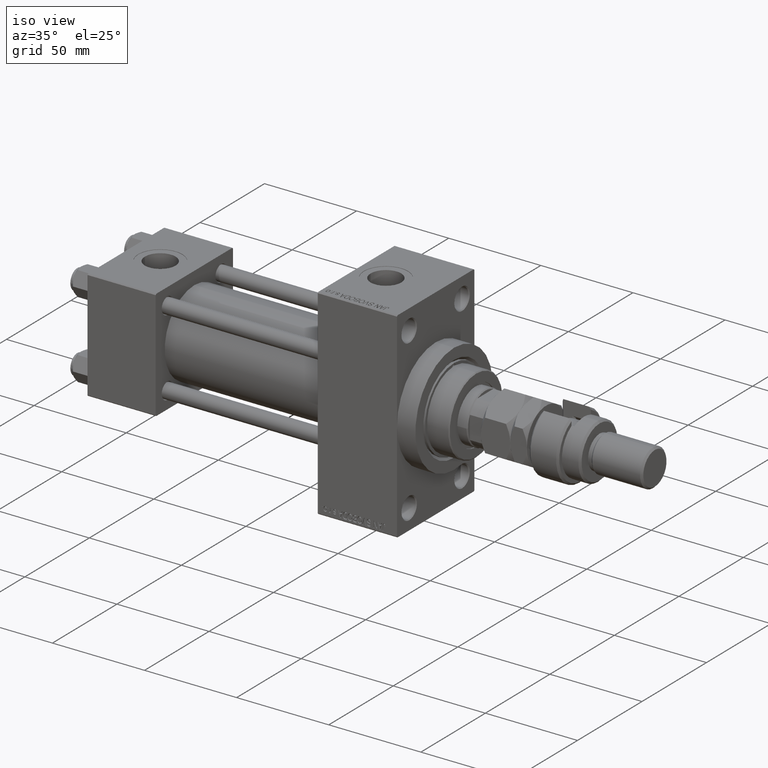
[diagram: clean part render]
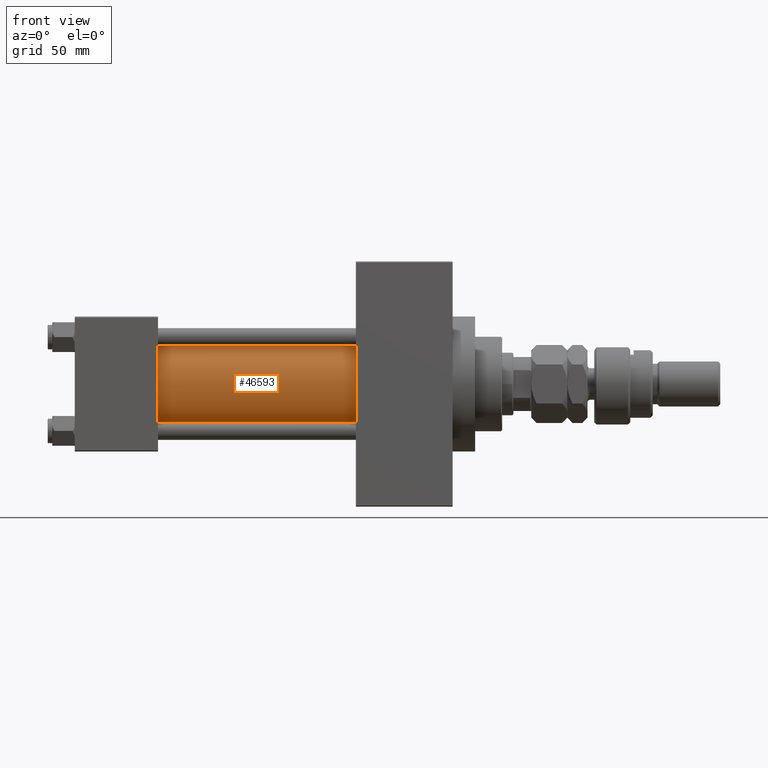
[diagram: tour spotlight — one face highlighted and labeled with its STEP entity id]
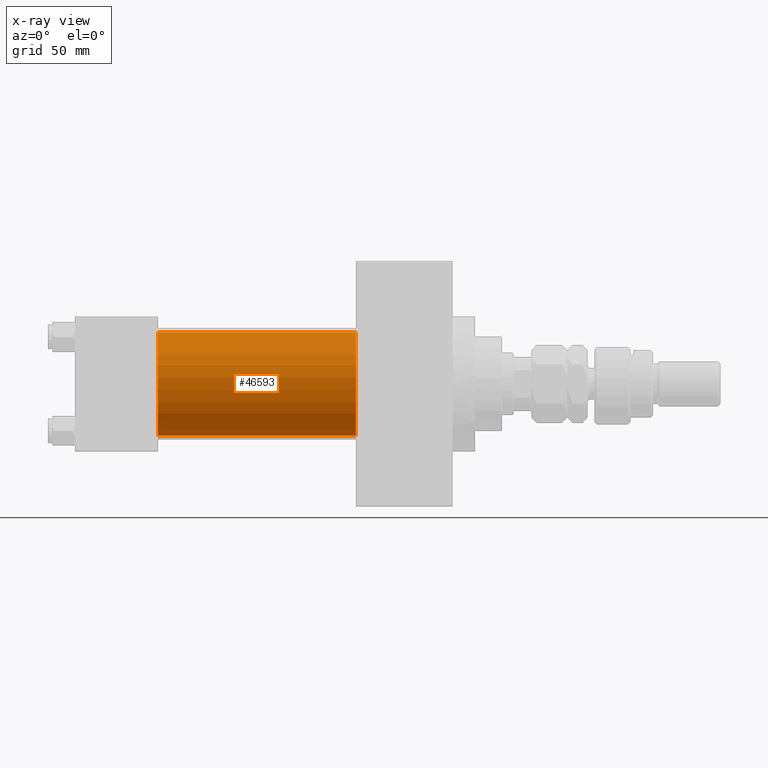
[diagram: x-ray of the same camera — body ghosted, this tour face saturated]
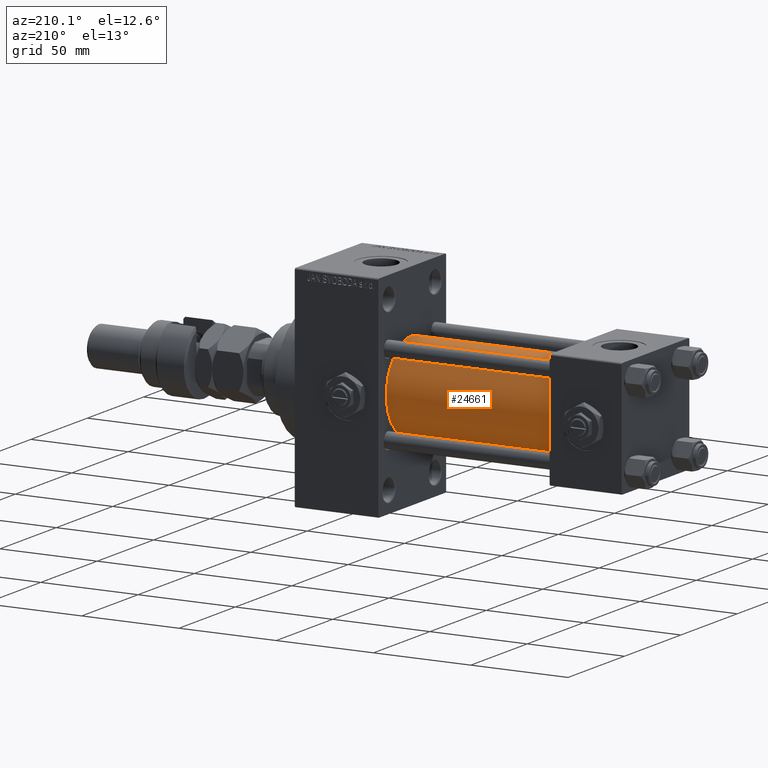
[diagram: tour spotlight — one face highlighted and labeled with its STEP entity id]
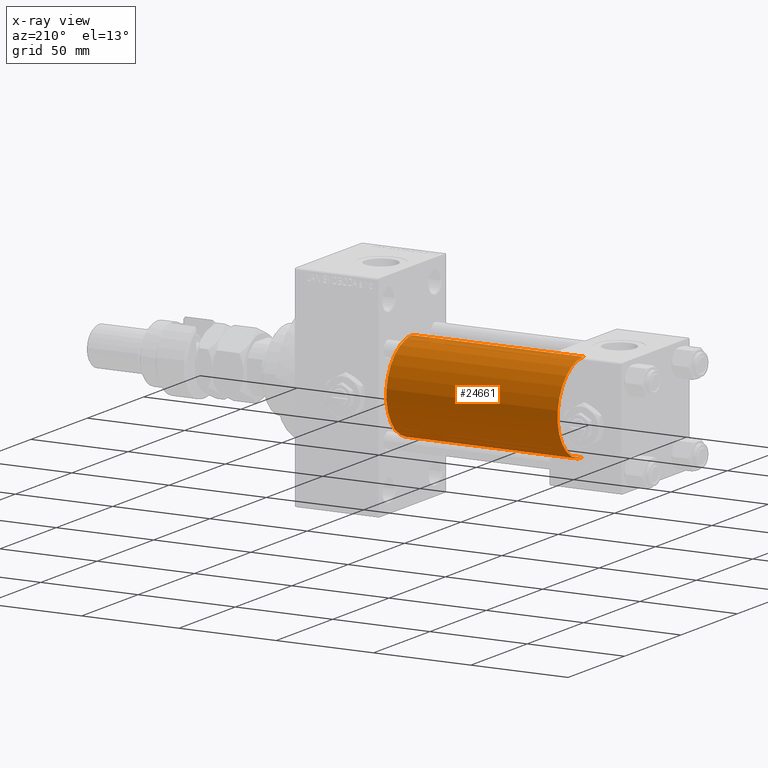
[diagram: x-ray of the same camera — body ghosted, this tour face saturated]
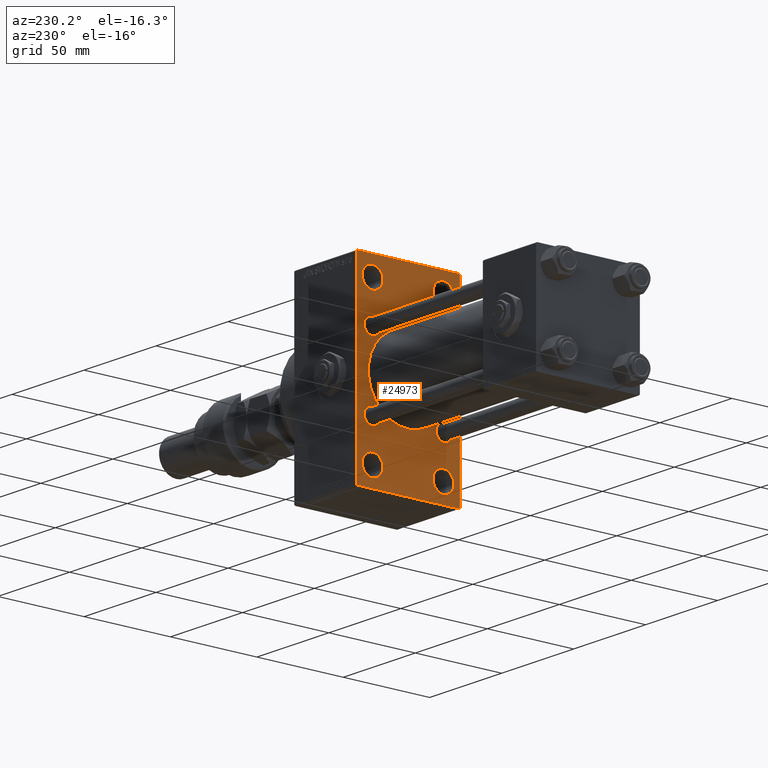
[diagram: tour spotlight — one face highlighted and labeled with its STEP entity id]
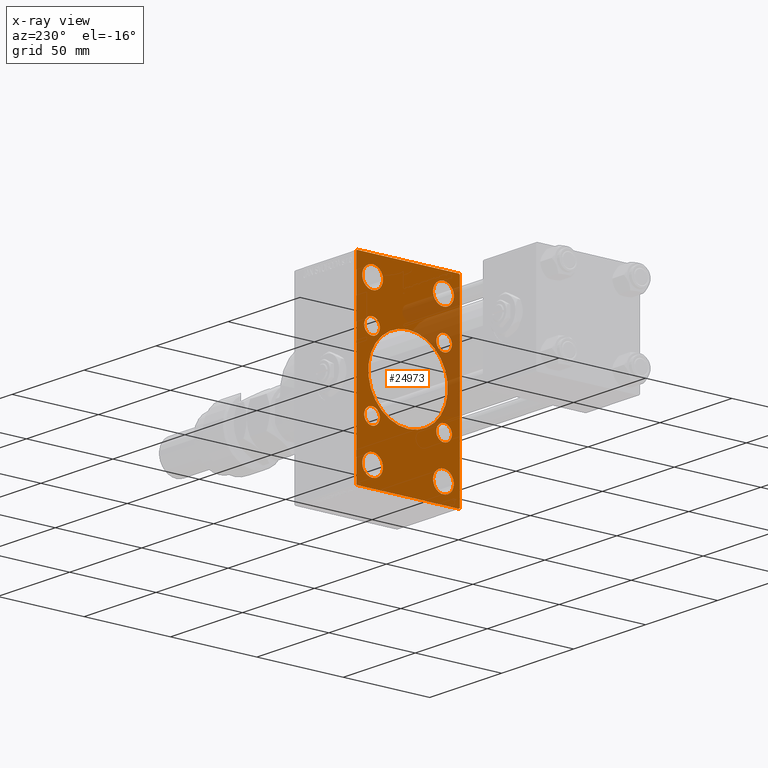
[diagram: x-ray of the same camera — body ghosted, this tour face saturated]
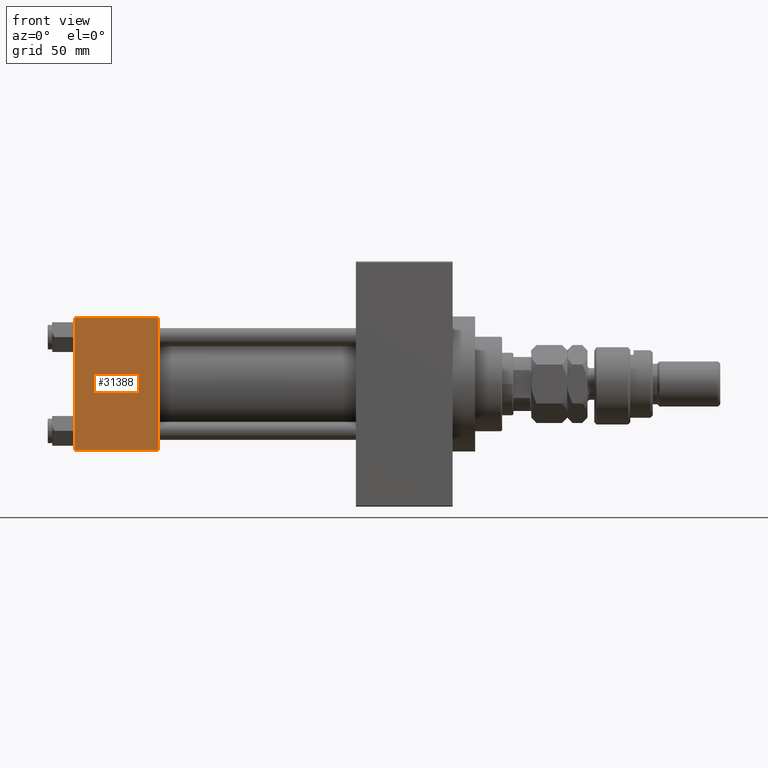
[diagram: tour spotlight — one face highlighted and labeled with its STEP entity id]
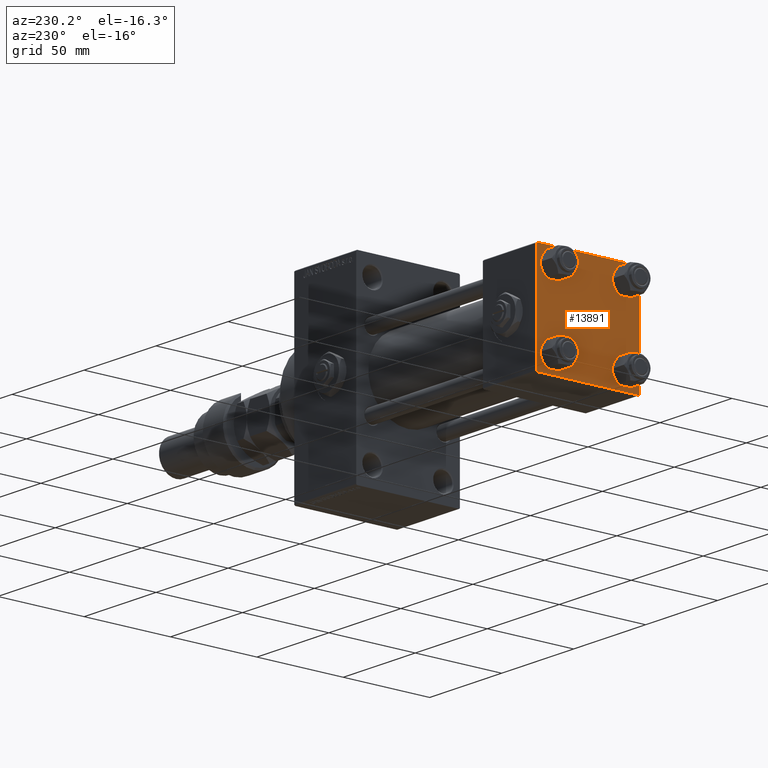
[diagram: tour spotlight — one face highlighted and labeled with its STEP entity id]
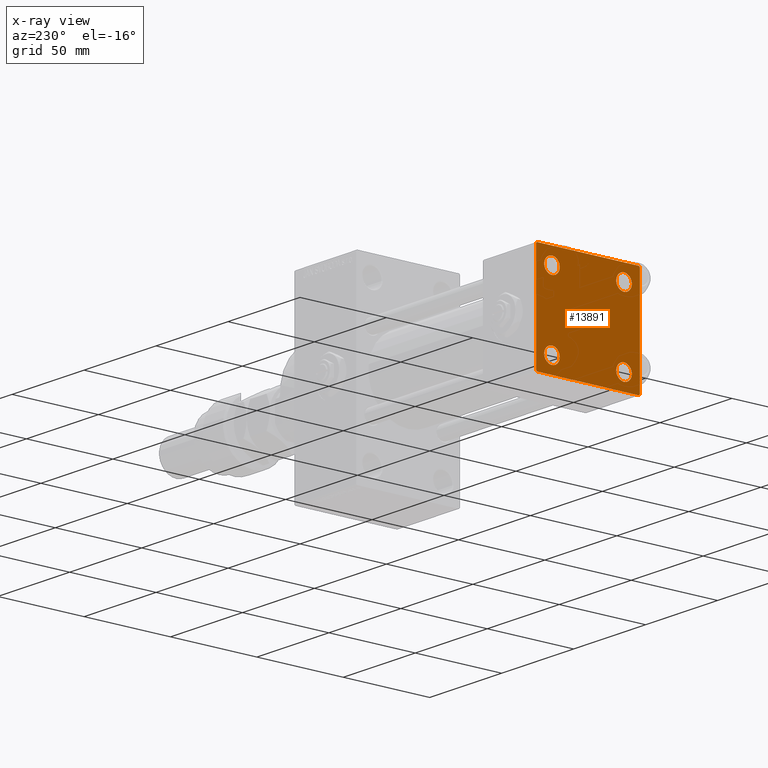
[diagram: x-ray of the same camera — body ghosted, this tour face saturated]
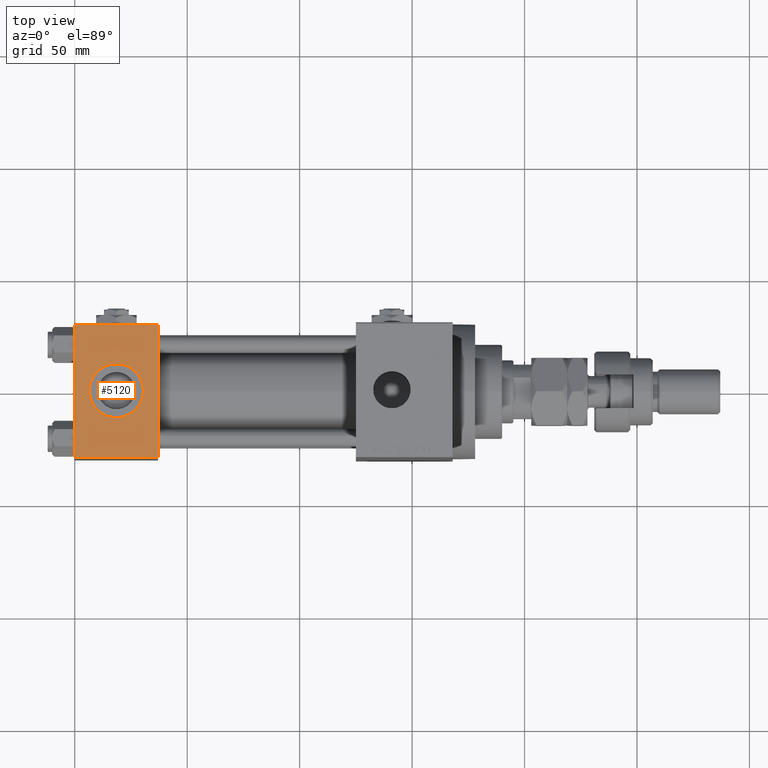
[diagram: tour spotlight — one face highlighted and labeled with its STEP entity id]
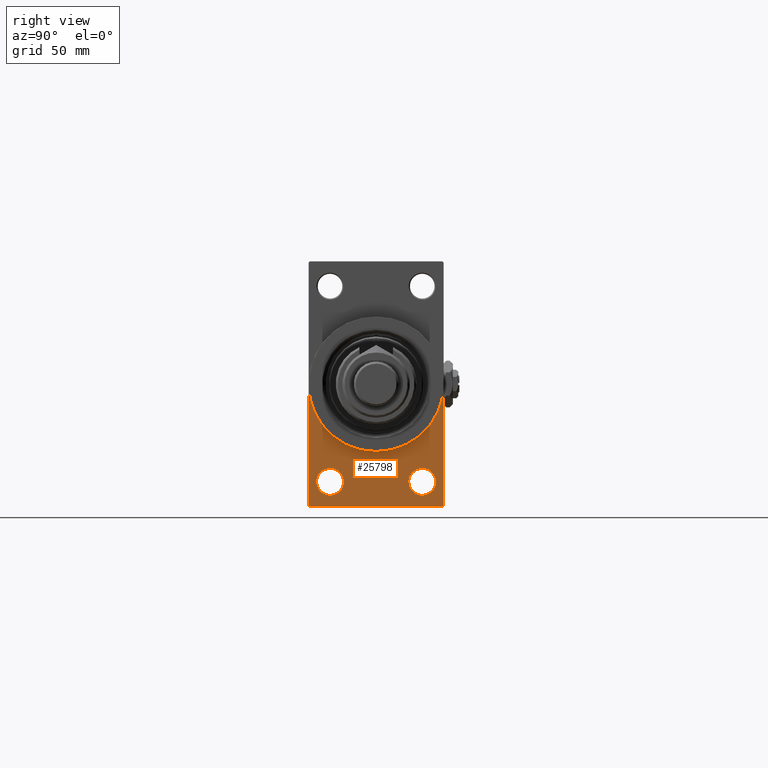
[diagram: tour spotlight — one face highlighted and labeled with its STEP entity id]
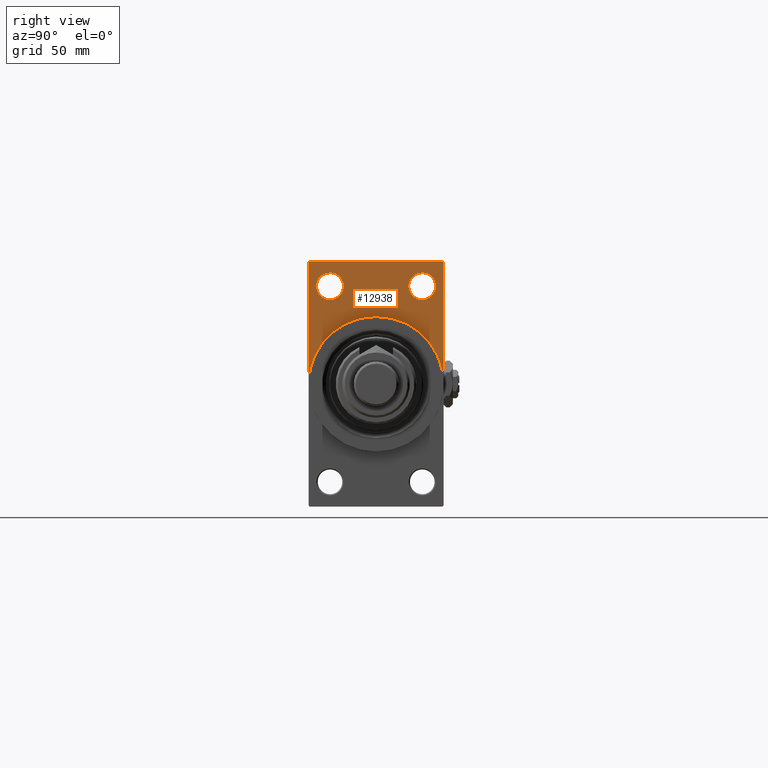
[diagram: tour spotlight — one face highlighted and labeled with its STEP entity id]
A machine part: a face-by-face anatomy tour. The part has 1300 B-rep faces; the first image is the clean iso view, then the 8 largest visible faces are spotlighted one at a time (largest first), each with its STEP entity span.

Face 1 — front view, entity #46593. An x-ray twin of the same camera follows (body ghosted, this face saturated) — the face is partly hidden behind the body. In plain terms, the highlighted cylindrical surface (partial cylindrical patch) has radius 23 mm, axis along (-1, -0, -0).
Definition (entity closure, byte-faithful):
#3053 = CIRCLE ( 'NONE', #46227, 23.00000000000000000 ) ;
#4856 = DIRECTION ( 'NONE',  ( -1.000000000000000000, -0.000000000000000000, -0.000000000000000000 ) ) ;
#8358 = LINE ( 'NONE', #40139, #51769 ) ;
#8912 = ORIENTED_EDGE ( 'NONE', *, *, #37295, .T. ) ;
#9116 = CIRCLE ( 'NONE', #36198, 23.00000000000000000 ) ;
#9629 = DIRECTION ( 'NONE',  ( 0.000000000000000000, 0.000000000000000000, 1.000000000000000000 ) ) ;
#13068 = CYLINDRICAL_SURFACE ( 'NONE', #21901, 23.00000000000000000 ) ;
#13340 = FACE_OUTER_BOUND ( 'NONE', #45484, .T. ) ;
#13712 = ORIENTED_EDGE ( 'NONE', *, *, #47250, .F. ) ;
#14009 = LINE ( 'NONE', #30432, #37159 ) ;
#14190 = CARTESIAN_POINT ( 'NONE',  ( 125.0000000000000000, 2.146024240737016609E-16, -23.00000000000000000 ) ) ;
#17233 = VERTEX_POINT ( 'NONE', #30686 ) ;
#18336 = CARTESIAN_POINT ( 'NONE',  ( 37.00000000000000711, -2.602085213965210642E-15, 0.000000000000000000 ) ) ;
#20236 = CARTESIAN_POINT ( 'NONE',  ( 125.0000000000000000, -2.602085213965210642E-15, 23.00000000000000000 ) ) ;
#21901 = AXIS2_PLACEMENT_3D ( 'NONE', #33727, #4856, #9629 ) ;
#23745 = DIRECTION ( 'NONE',  ( 0.000000000000000000, 0.000000000000000000, -1.000000000000000000 ) ) ;
#24906 = EDGE_CURVE ( 'NONE', #33487, #17233, #8358, .T. ) ;
#26655 = ORIENTED_EDGE ( 'NONE', *, *, #24906, .T. ) ;
#27013 = VERTEX_POINT ( 'NONE', #47941 ) ;
#30246 = DIRECTION ( 'NONE',  ( 0.000000000000000000, 0.000000000000000000, 1.000000000000000000 ) ) ;
#30432 = CARTESIAN_POINT ( 'NONE',  ( 125.0000000000000000, 2.146024240737016609E-16, -23.00000000000000000 ) ) ;
#30686 = CARTESIAN_POINT ( 'NONE',  ( 37.00000000000000711, -2.602085213965210642E-15, 23.00000000000000000 ) ) ;
#32507 = VERTEX_POINT ( 'NONE', #14190 ) ;
#33487 = VERTEX_POINT ( 'NONE', #20236 ) ;
#33727 = CARTESIAN_POINT ( 'NONE',  ( 125.0000000000000000, -2.602085213965210642E-15, 0.000000000000000000 ) ) ;
#36198 = AXIS2_PLACEMENT_3D ( 'NONE', #40927, #40152, #23745 ) ;
#36437 = DIRECTION ( 'NONE',  ( -1.000000000000000000, -0.000000000000000000, -0.000000000000000000 ) ) ;
#36473 = ORIENTED_EDGE ( 'NONE', *, *, #44277, .F. ) ;
#37159 = VECTOR ( 'NONE', #47136, 1000.000000000000000 ) ;
#37295 = EDGE_CURVE ( 'NONE', #17233, #27013, #3053, .T. ) ;
#40139 = CARTESIAN_POINT ( 'NONE',  ( 125.0000000000000000, -2.602085213965210642E-15, 23.00000000000000000 ) ) ;
#40152 = DIRECTION ( 'NONE',  ( 1.000000000000000000, 0.000000000000000000, 0.000000000000000000 ) ) ;
#40927 = CARTESIAN_POINT ( 'NONE',  ( 125.0000000000000000, -2.602085213965210642E-15, 0.000000000000000000 ) ) ;
#44277 = EDGE_CURVE ( 'NONE', #33487, #32507, #9116, .T. ) ;
#45484 = EDGE_LOOP ( 'NONE', ( #13712, #36473, #26655, #8912 ) ) ;
#45902 = DIRECTION ( 'NONE',  ( 1.000000000000000000, -0.000000000000000000, 0.000000000000000000 ) ) ;
#46227 = AXIS2_PLACEMENT_3D ( 'NONE', #18336, #45902, #30246 ) ;
#46593 = ADVANCED_FACE ( 'NONE', ( #13340 ), #13068, .T. ) ;
#47136 = DIRECTION ( 'NONE',  ( -1.000000000000000000, -0.000000000000000000, -0.000000000000000000 ) ) ;
#47250 = EDGE_CURVE ( 'NONE', #32507, #27013, #14009, .T. ) ;
#47941 = CARTESIAN_POINT ( 'NONE',  ( 37.00000000000000711, 2.146024240737016609E-16, -23.00000000000000000 ) ) ;
#51769 = VECTOR ( 'NONE', #36437, 1000.000000000000000 ) ;

Face 2 — auxiliary view, entity #24661. An x-ray twin of the same camera follows (body ghosted, this face saturated) — the face is partly hidden behind the body. In plain terms, the highlighted cylindrical surface (partial cylindrical patch) has radius 23 mm, axis along (-1, -0, -0).
Definition (entity closure, byte-faithful):
#5750 = DIRECTION ( 'NONE',  ( 1.000000000000000000, -0.000000000000000000, 0.000000000000000000 ) ) ;
#8358 = LINE ( 'NONE', #40139, #51769 ) ;
#8842 = DIRECTION ( 'NONE',  ( 1.000000000000000000, 0.000000000000000000, 0.000000000000000000 ) ) ;
#14009 = LINE ( 'NONE', #30432, #37159 ) ;
#14190 = CARTESIAN_POINT ( 'NONE',  ( 125.0000000000000000, 2.146024240737016609E-16, -23.00000000000000000 ) ) ;
#16428 = EDGE_CURVE ( 'NONE', #32507, #33487, #20256, .T. ) ;
#16541 = DIRECTION ( 'NONE',  ( 0.000000000000000000, 0.000000000000000000, -1.000000000000000000 ) ) ;
#16896 = CYLINDRICAL_SURFACE ( 'NONE', #32371, 23.00000000000000000 ) ;
#17233 = VERTEX_POINT ( 'NONE', #30686 ) ;
#18177 = EDGE_CURVE ( 'NONE', #27013, #17233, #40586, .T. ) ;
#20236 = CARTESIAN_POINT ( 'NONE',  ( 125.0000000000000000, -2.602085213965210642E-15, 23.00000000000000000 ) ) ;
#20256 = CIRCLE ( 'NONE', #47356, 23.00000000000000000 ) ;
#20595 = FACE_OUTER_BOUND ( 'NONE', #44176, .T. ) ;
#21703 = ORIENTED_EDGE ( 'NONE', *, *, #16428, .F. ) ;
#24661 = ADVANCED_FACE ( 'NONE', ( #20595 ), #16896, .T. ) ;
#24906 = EDGE_CURVE ( 'NONE', #33487, #17233, #8358, .T. ) ;
#27013 = VERTEX_POINT ( 'NONE', #47941 ) ;
#28436 = ORIENTED_EDGE ( 'NONE', *, *, #24906, .F. ) ;
#29840 = CARTESIAN_POINT ( 'NONE',  ( 37.00000000000000711, -2.602085213965210642E-15, 0.000000000000000000 ) ) ;
#30432 = CARTESIAN_POINT ( 'NONE',  ( 125.0000000000000000, 2.146024240737016609E-16, -23.00000000000000000 ) ) ;
#30686 = CARTESIAN_POINT ( 'NONE',  ( 37.00000000000000711, -2.602085213965210642E-15, 23.00000000000000000 ) ) ;
#32371 = AXIS2_PLACEMENT_3D ( 'NONE', #33025, #49213, #36753 ) ;
#32507 = VERTEX_POINT ( 'NONE', #14190 ) ;
#33025 = CARTESIAN_POINT ( 'NONE',  ( 125.0000000000000000, -2.602085213965210642E-15, 0.000000000000000000 ) ) ;
#33487 = VERTEX_POINT ( 'NONE', #20236 ) ;
#36158 = CARTESIAN_POINT ( 'NONE',  ( 125.0000000000000000, -2.602085213965210642E-15, 0.000000000000000000 ) ) ;
#36437 = DIRECTION ( 'NONE',  ( -1.000000000000000000, -0.000000000000000000, -0.000000000000000000 ) ) ;
#36753 = DIRECTION ( 'NONE',  ( 0.000000000000000000, 0.000000000000000000, 1.000000000000000000 ) ) ;
#37159 = VECTOR ( 'NONE', #47136, 1000.000000000000000 ) ;
#37510 = ORIENTED_EDGE ( 'NONE', *, *, #18177, .T. ) ;
#40139 = CARTESIAN_POINT ( 'NONE',  ( 125.0000000000000000, -2.602085213965210642E-15, 23.00000000000000000 ) ) ;
#40586 = CIRCLE ( 'NONE', #46507, 23.00000000000000000 ) ;
#44176 = EDGE_LOOP ( 'NONE', ( #21703, #50568, #37510, #28436 ) ) ;
#46507 = AXIS2_PLACEMENT_3D ( 'NONE', #29840, #5750, #48957 ) ;
#47136 = DIRECTION ( 'NONE',  ( -1.000000000000000000, -0.000000000000000000, -0.000000000000000000 ) ) ;
#47250 = EDGE_CURVE ( 'NONE', #32507, #27013, #14009, .T. ) ;
#47356 = AXIS2_PLACEMENT_3D ( 'NONE', #36158, #8842, #16541 ) ;
#47941 = CARTESIAN_POINT ( 'NONE',  ( 37.00000000000000711, 2.146024240737016609E-16, -23.00000000000000000 ) ) ;
#48957 = DIRECTION ( 'NONE',  ( 0.000000000000000000, 0.000000000000000000, 1.000000000000000000 ) ) ;
#49213 = DIRECTION ( 'NONE',  ( -1.000000000000000000, -0.000000000000000000, -0.000000000000000000 ) ) ;
#50568 = ORIENTED_EDGE ( 'NONE', *, *, #47250, .T. ) ;
#51769 = VECTOR ( 'NONE', #36437, 1000.000000000000000 ) ;

Face 3 — auxiliary view, entity #24973. An x-ray twin of the same camera follows (body ghosted, this face saturated) — the face is partly hidden behind the body. In plain terms, the highlighted planar face has unit normal (-1, 0, 0).
Definition (entity closure, byte-faithful):
#108 = DIRECTION ( 'NONE',  ( 0.000000000000000000, 0.000000000000000000, 1.000000000000000000 ) ) ;
#893 = CARTESIAN_POINT ( 'NONE',  ( 125.0000000000000000, -20.84999999999999076, 20.85000000000000497 ) ) ;
#943 = CARTESIAN_POINT ( 'NONE',  ( 125.0000000000000000, -20.50000000000000000, 49.49999999999997158 ) ) ;
#1155 = EDGE_CURVE ( 'NONE', #37992, #44138, #35919, .T. ) ;
#1224 = AXIS2_PLACEMENT_3D ( 'NONE', #893, #13368, #20781 ) ;
#1270 = CIRCLE ( 'NONE', #10596, 5.999999999999977796 ) ;
#1591 = DIRECTION ( 'NONE',  ( 1.000000000000000000, -0.000000000000000000, 0.000000000000000000 ) ) ;
#2110 = DIRECTION ( 'NONE',  ( 0.000000000000000000, 0.000000000000000000, 1.000000000000000000 ) ) ;
#2382 = DIRECTION ( 'NONE',  ( 1.000000000000000000, -0.000000000000000000, 0.000000000000000000 ) ) ;
#2562 = DIRECTION ( 'NONE',  ( 0.000000000000000000, 0.000000000000000000, 1.000000000000000000 ) ) ;
#2586 = DIRECTION ( 'NONE',  ( 1.000000000000000000, -0.000000000000000000, 0.000000000000000000 ) ) ;
#3513 = EDGE_CURVE ( 'NONE', #48917, #5198, #43440, .T. ) ;
#3529 = CARTESIAN_POINT ( 'NONE',  ( 125.0000000000000000, -20.84999999999999076, 16.34999999999999787 ) ) ;
#4026 = AXIS2_PLACEMENT_3D ( 'NONE', #47154, #38658, #27509 ) ;
#4038 = EDGE_CURVE ( 'NONE', #5894, #18763, #38029, .T. ) ;
#4219 = ORIENTED_EDGE ( 'NONE', *, *, #4038, .T. ) ;
#4675 = CARTESIAN_POINT ( 'NONE',  ( 125.0000000000000000, -20.50000000000000000, 43.50000000000000000 ) ) ;
#5198 = VERTEX_POINT ( 'NONE', #14266 ) ;
#5320 = VERTEX_POINT ( 'NONE', #943 ) ;
#5881 = CARTESIAN_POINT ( 'NONE',  ( 125.0000000000000000, -29.49999999999997513, 54.50000000000000000 ) ) ;
#5894 = VERTEX_POINT ( 'NONE', #8985 ) ;
#6173 = ORIENTED_EDGE ( 'NONE', *, *, #13489, .T. ) ;
#6520 = EDGE_CURVE ( 'NONE', #26339, #19824, #32180, .T. ) ;
#7313 = CARTESIAN_POINT ( 'NONE',  ( 125.0000000000000000, 29.99999999999999645, -54.49999999999999289 ) ) ;
#7343 = EDGE_LOOP ( 'NONE', ( #29586, #44505 ) ) ;
#7406 = EDGE_CURVE ( 'NONE', #47064, #34691, #26766, .T. ) ;
#7833 = CARTESIAN_POINT ( 'NONE',  ( 125.0000000000000000, -20.50000000000000000, 43.50000000000000000 ) ) ;
#7880 = EDGE_LOOP ( 'NONE', ( #6173, #48268 ) ) ;
#8842 = DIRECTION ( 'NONE',  ( 1.000000000000000000, 0.000000000000000000, 0.000000000000000000 ) ) ;
#8864 = EDGE_LOOP ( 'NONE', ( #43123, #49206 ) ) ;
#8917 = CIRCLE ( 'NONE', #29213, 4.500000000000007105 ) ;
#8985 = CARTESIAN_POINT ( 'NONE',  ( 125.0000000000000000, 29.50000000000002132, 54.49999999999999289 ) ) ;
#9004 = VERTEX_POINT ( 'NONE', #33958 ) ;
#9073 = ORIENTED_EDGE ( 'NONE', *, *, #51681, .T. ) ;
#9116 = CIRCLE ( 'NONE', #36198, 23.00000000000000000 ) ;
#9298 = AXIS2_PLACEMENT_3D ( 'NONE', #42567, #38856, #2562 ) ;
#9308 = ORIENTED_EDGE ( 'NONE', *, *, #49577, .T. ) ;
#9430 = CARTESIAN_POINT ( 'NONE',  ( 125.0000000000000000, 41.99999999999998579, -41.99999999999998579 ) ) ;
#9432 = CIRCLE ( 'NONE', #41593, 4.500000000000007105 ) ;
#9474 = VECTOR ( 'NONE', #36893, 1000.000000000000000 ) ;
#9679 = CARTESIAN_POINT ( 'NONE',  ( 125.0000000000000000, -20.84999999999999076, -16.34999999999999787 ) ) ;
#9694 = VECTOR ( 'NONE', #11089, 1000.000000000000000 ) ;
#9756 = ORIENTED_EDGE ( 'NONE', *, *, #11997, .T. ) ;
#10520 = DIRECTION ( 'NONE',  ( 0.000000000000000000, 0.000000000000000000, 1.000000000000000000 ) ) ;
#10596 = AXIS2_PLACEMENT_3D ( 'NONE', #32143, #52038, #10520 ) ;
#11085 = DIRECTION ( 'NONE',  ( 1.000000000000000000, -0.000000000000000000, 0.000000000000000000 ) ) ;
#11089 = DIRECTION ( 'NONE',  ( 0.000000000000000000, 0.000000000000000000, -1.000000000000000000 ) ) ;
#11123 = CARTESIAN_POINT ( 'NONE',  ( 125.0000000000000000, 20.84999999999999787, -25.35000000000000853 ) ) ;
#11588 = CARTESIAN_POINT ( 'NONE',  ( 125.0000000000000000, -20.50000000000000000, -43.50000000000000000 ) ) ;
#11633 = AXIS2_PLACEMENT_3D ( 'NONE', #27839, #31557, #46959 ) ;
#11904 = VERTEX_POINT ( 'NONE', #44025 ) ;
#11997 = EDGE_CURVE ( 'NONE', #19824, #5198, #36832, .T. ) ;
#12412 = VERTEX_POINT ( 'NONE', #49174 ) ;
#12838 = DIRECTION ( 'NONE',  ( -0.000000000000000000, 0.000000000000000000, 1.000000000000000000 ) ) ;
#12902 = EDGE_CURVE ( 'NONE', #44138, #37992, #47198, .T. ) ;
#13251 = EDGE_CURVE ( 'NONE', #27873, #47522, #34470, .T. ) ;
#13334 = CIRCLE ( 'NONE', #11633, 4.500000000000007105 ) ;
#13368 = DIRECTION ( 'NONE',  ( 1.000000000000000000, -0.000000000000000000, 0.000000000000000000 ) ) ;
#13489 = EDGE_CURVE ( 'NONE', #20870, #32015, #13334, .T. ) ;
#13662 = DIRECTION ( 'NONE',  ( -0.000000000000000000, -0.7071067811865474617, -0.7071067811865474617 ) ) ;
#13691 = EDGE_LOOP ( 'NONE', ( #30016, #20995 ) ) ;
#13991 = ORIENTED_EDGE ( 'NONE', *, *, #37968, .T. ) ;
#14190 = CARTESIAN_POINT ( 'NONE',  ( 125.0000000000000000, 2.146024240737016609E-16, -23.00000000000000000 ) ) ;
#14266 = CARTESIAN_POINT ( 'NONE',  ( 125.0000000000000000, -30.00000000000000000, -53.99999999999998579 ) ) ;
#14270 = EDGE_LOOP ( 'NONE', ( #39272, #9756, #43315, #50101, #22323, #4219, #9073, #17805 ) ) ;
#14461 = EDGE_LOOP ( 'NONE', ( #44428, #9308 ) ) ;
#14786 = VECTOR ( 'NONE', #42647, 1000.000000000000000 ) ;
#15243 = CIRCLE ( 'NONE', #9298, 4.500000000000007105 ) ;
#16428 = EDGE_CURVE ( 'NONE', #32507, #33487, #20256, .T. ) ;
#16541 = DIRECTION ( 'NONE',  ( 0.000000000000000000, 0.000000000000000000, -1.000000000000000000 ) ) ;
#17805 = ORIENTED_EDGE ( 'NONE', *, *, #22994, .T. ) ;
#17869 = FACE_BOUND ( 'NONE', #32660, .T. ) ;
#17897 = CARTESIAN_POINT ( 'NONE',  ( 125.0000000000000000, 42.00000000000082423, 41.99999999999849365 ) ) ;
#17949 = AXIS2_PLACEMENT_3D ( 'NONE', #18295, #1591, #2110 ) ;
#18289 = CARTESIAN_POINT ( 'NONE',  ( 125.0000000000000000, 29.99999999999999645, 53.99999999999999289 ) ) ;
#18295 = CARTESIAN_POINT ( 'NONE',  ( 125.0000000000000000, 20.50000000000000000, 43.50000000000000000 ) ) ;
#18304 = AXIS2_PLACEMENT_3D ( 'NONE', #39419, #11085, #42616 ) ;
#18354 = CIRCLE ( 'NONE', #40335, 5.999999999999977796 ) ;
#18763 = VERTEX_POINT ( 'NONE', #18289 ) ;
#18817 = CARTESIAN_POINT ( 'NONE',  ( 125.0000000000000000, 20.50000000000000000, -43.50000000000000000 ) ) ;
#19824 = VERTEX_POINT ( 'NONE', #25253 ) ;
#20236 = CARTESIAN_POINT ( 'NONE',  ( 125.0000000000000000, -2.602085213965210642E-15, 23.00000000000000000 ) ) ;
#20256 = CIRCLE ( 'NONE', #47356, 23.00000000000000000 ) ;
#20781 = DIRECTION ( 'NONE',  ( 0.000000000000000000, 0.000000000000000000, 1.000000000000000000 ) ) ;
#20870 = VERTEX_POINT ( 'NONE', #36351 ) ;
#20995 = ORIENTED_EDGE ( 'NONE', *, *, #16428, .T. ) ;
#21316 = FACE_BOUND ( 'NONE', #7343, .T. ) ;
#21495 = LINE ( 'NONE', #50843, #39436 ) ;
#22106 = DIRECTION ( 'NONE',  ( -1.000000000000000000, 0.000000000000000000, -0.000000000000000000 ) ) ;
#22142 = AXIS2_PLACEMENT_3D ( 'NONE', #23153, #51003, #27122 ) ;
#22185 = CIRCLE ( 'NONE', #17949, 5.999999999999977796 ) ;
#22220 = VECTOR ( 'NONE', #13662, 1000.000000000000114 ) ;
#22323 = ORIENTED_EDGE ( 'NONE', *, *, #49756, .F. ) ;
#22352 = EDGE_CURVE ( 'NONE', #49200, #9004, #22185, .T. ) ;
#22809 = EDGE_LOOP ( 'NONE', ( #41765, #51566 ) ) ;
#22994 = EDGE_CURVE ( 'NONE', #26129, #26339, #25843, .T. ) ;
#23014 = CARTESIAN_POINT ( 'NONE',  ( 125.0000000000000000, 29.99999999999999645, 54.49999999999999289 ) ) ;
#23153 = CARTESIAN_POINT ( 'NONE',  ( 125.0000000000000000, -20.84999999999999076, -20.85000000000000497 ) ) ;
#23614 = EDGE_CURVE ( 'NONE', #12412, #36671, #46774, .T. ) ;
#23745 = DIRECTION ( 'NONE',  ( 0.000000000000000000, 0.000000000000000000, -1.000000000000000000 ) ) ;
#24344 = AXIS2_PLACEMENT_3D ( 'NONE', #36636, #28412, #40345 ) ;
#24973 = ADVANCED_FACE ( 'NONE', ( #46222, #25548, #33484, #17869, #42238, #21316, #49941, #34015, #50194, #45964 ), #49149, .T. ) ;
#25044 = EDGE_LOOP ( 'NONE', ( #28686, #44661 ) ) ;
#25226 = DIRECTION ( 'NONE',  ( 0.000000000000000000, 0.7071067811865279218, -0.7071067811865671127 ) ) ;
#25253 = CARTESIAN_POINT ( 'NONE',  ( 125.0000000000000000, -29.50000000000000355, -54.50000000000000000 ) ) ;
#25548 = FACE_BOUND ( 'NONE', #22809, .T. ) ;
#25574 = AXIS2_PLACEMENT_3D ( 'NONE', #11588, #2586, #27737 ) ;
#25678 = CIRCLE ( 'NONE', #36649, 5.999999999999977796 ) ;
#25843 = LINE ( 'NONE', #9430, #22220 ) ;
#26129 = VERTEX_POINT ( 'NONE', #42767 ) ;
#26339 = VERTEX_POINT ( 'NONE', #32144 ) ;
#26513 = AXIS2_PLACEMENT_3D ( 'NONE', #18817, #34964, #44747 ) ;
#26766 = CIRCLE ( 'NONE', #18304, 4.500000000000007105 ) ;
#27122 = DIRECTION ( 'NONE',  ( 0.000000000000000000, 0.000000000000000000, 1.000000000000000000 ) ) ;
#27189 = CARTESIAN_POINT ( 'NONE',  ( 125.0000000000000000, -20.84999999999999076, 25.35000000000001208 ) ) ;
#27256 = EDGE_CURVE ( 'NONE', #34691, #47064, #9432, .T. ) ;
#27388 = DIRECTION ( 'NONE',  ( 0.000000000000000000, 0.000000000000000000, 1.000000000000000000 ) ) ;
#27509 = DIRECTION ( 'NONE',  ( 0.000000000000000000, 0.000000000000000000, 1.000000000000000000 ) ) ;
#27702 = EDGE_LOOP ( 'NONE', ( #30037, #28036 ) ) ;
#27737 = DIRECTION ( 'NONE',  ( 0.000000000000000000, 0.000000000000000000, 1.000000000000000000 ) ) ;
#27839 = CARTESIAN_POINT ( 'NONE',  ( 125.0000000000000000, 20.84999999999999787, -20.85000000000000142 ) ) ;
#27873 = VERTEX_POINT ( 'NONE', #31283 ) ;
#27991 = CARTESIAN_POINT ( 'NONE',  ( 125.0000000000000000, 20.84999999999999787, 16.34999999999999432 ) ) ;
#28036 = ORIENTED_EDGE ( 'NONE', *, *, #1155, .T. ) ;
#28412 = DIRECTION ( 'NONE',  ( 1.000000000000000000, -0.000000000000000000, 0.000000000000000000 ) ) ;
#28686 = ORIENTED_EDGE ( 'NONE', *, *, #13251, .T. ) ;
#29213 = AXIS2_PLACEMENT_3D ( 'NONE', #33330, #46341, #29365 ) ;
#29365 = DIRECTION ( 'NONE',  ( 0.000000000000000000, 0.000000000000000000, 1.000000000000000000 ) ) ;
#29586 = ORIENTED_EDGE ( 'NONE', *, *, #7406, .T. ) ;
#30016 = ORIENTED_EDGE ( 'NONE', *, *, #44277, .T. ) ;
#30037 = ORIENTED_EDGE ( 'NONE', *, *, #12902, .T. ) ;
#30896 = CARTESIAN_POINT ( 'NONE',  ( 125.0000000000000000, -20.50000000000000000, -49.49999999999997158 ) ) ;
#30967 = EDGE_CURVE ( 'NONE', #36671, #12412, #25678, .T. ) ;
#31085 = EDGE_CURVE ( 'NONE', #47522, #27873, #44295, .T. ) ;
#31283 = CARTESIAN_POINT ( 'NONE',  ( 125.0000000000000000, 20.50000000000000000, -37.50000000000002132 ) ) ;
#31370 = CARTESIAN_POINT ( 'NONE',  ( 125.0000000000000000, 20.84999999999999787, 20.85000000000000142 ) ) ;
#31557 = DIRECTION ( 'NONE',  ( 1.000000000000000000, -0.000000000000000000, 0.000000000000000000 ) ) ;
#32015 = VERTEX_POINT ( 'NONE', #11123 ) ;
#32143 = CARTESIAN_POINT ( 'NONE',  ( 125.0000000000000000, 20.50000000000000000, 43.50000000000000000 ) ) ;
#32144 = CARTESIAN_POINT ( 'NONE',  ( 125.0000000000000000, 29.49999999999999645, -54.49999999999999289 ) ) ;
#32180 = LINE ( 'NONE', #7313, #52126 ) ;
#32323 = CARTESIAN_POINT ( 'NONE',  ( 125.0000000000000000, 20.50000000000000000, 37.50000000000002132 ) ) ;
#32341 = DIRECTION ( 'NONE',  ( 0.000000000000000000, -0.7071067811865352493, 0.7071067811865597852 ) ) ;
#32432 = DIRECTION ( 'NONE',  ( 1.000000000000000000, -0.000000000000000000, 0.000000000000000000 ) ) ;
#32507 = VERTEX_POINT ( 'NONE', #14190 ) ;
#32660 = EDGE_LOOP ( 'NONE', ( #13991, #43625 ) ) ;
#33014 = DIRECTION ( 'NONE',  ( 0.000000000000000000, 0.000000000000000000, 1.000000000000000000 ) ) ;
#33256 = VERTEX_POINT ( 'NONE', #9679 ) ;
#33330 = CARTESIAN_POINT ( 'NONE',  ( 125.0000000000000000, -20.84999999999999076, -20.85000000000000497 ) ) ;
#33484 = FACE_BOUND ( 'NONE', #25044, .T. ) ;
#33487 = VERTEX_POINT ( 'NONE', #20236 ) ;
#33704 = CARTESIAN_POINT ( 'NONE',  ( 125.0000000000000000, 29.99999999999999645, 54.49999999999999289 ) ) ;
#33958 = CARTESIAN_POINT ( 'NONE',  ( 125.0000000000000000, 20.50000000000000000, 49.49999999999997158 ) ) ;
#34015 = FACE_BOUND ( 'NONE', #14461, .T. ) ;
#34470 = CIRCLE ( 'NONE', #24344, 5.999999999999977796 ) ;
#34691 = VERTEX_POINT ( 'NONE', #27991 ) ;
#34964 = DIRECTION ( 'NONE',  ( 1.000000000000000000, -0.000000000000000000, 0.000000000000000000 ) ) ;
#35185 = DIRECTION ( 'NONE',  ( -0.000000000000000000, 0.7071067811865451302, 0.7071067811865500152 ) ) ;
#35919 = CIRCLE ( 'NONE', #1224, 4.500000000000007105 ) ;
#36158 = CARTESIAN_POINT ( 'NONE',  ( 125.0000000000000000, -2.602085213965210642E-15, 0.000000000000000000 ) ) ;
#36178 = VERTEX_POINT ( 'NONE', #47780 ) ;
#36198 = AXIS2_PLACEMENT_3D ( 'NONE', #40927, #40152, #23745 ) ;
#36263 = VECTOR ( 'NONE', #32341, 1000.000000000000000 ) ;
#36282 = VERTEX_POINT ( 'NONE', #5881 ) ;
#36351 = CARTESIAN_POINT ( 'NONE',  ( 125.0000000000000000, 20.84999999999999787, -16.34999999999999432 ) ) ;
#36636 = CARTESIAN_POINT ( 'NONE',  ( 125.0000000000000000, 20.50000000000000000, -43.50000000000000000 ) ) ;
#36649 = AXIS2_PLACEMENT_3D ( 'NONE', #38674, #2382, #42645 ) ;
#36671 = VERTEX_POINT ( 'NONE', #30896 ) ;
#36745 = CARTESIAN_POINT ( 'NONE',  ( 125.0000000000000000, 20.50000000000000000, -49.49999999999997158 ) ) ;
#36832 = LINE ( 'NONE', #45056, #36263 ) ;
#36893 = DIRECTION ( 'NONE',  ( 0.000000000000000000, -1.000000000000000000, 1.156482317317871478E-16 ) ) ;
#37772 = CIRCLE ( 'NONE', #44555, 5.999999999999977796 ) ;
#37968 = EDGE_CURVE ( 'NONE', #9004, #49200, #1270, .T. ) ;
#37992 = VERTEX_POINT ( 'NONE', #3529 ) ;
#38029 = LINE ( 'NONE', #17897, #39274 ) ;
#38339 = CARTESIAN_POINT ( 'NONE',  ( 125.0000000000000000, 20.84999999999999787, 25.35000000000000853 ) ) ;
#38658 = DIRECTION ( 'NONE',  ( 1.000000000000000000, -0.000000000000000000, 0.000000000000000000 ) ) ;
#38674 = CARTESIAN_POINT ( 'NONE',  ( 125.0000000000000000, -20.50000000000000000, -43.50000000000000000 ) ) ;
#38856 = DIRECTION ( 'NONE',  ( 1.000000000000000000, -0.000000000000000000, 0.000000000000000000 ) ) ;
#39272 = ORIENTED_EDGE ( 'NONE', *, *, #6520, .T. ) ;
#39274 = VECTOR ( 'NONE', #25226, 1000.000000000000000 ) ;
#39419 = CARTESIAN_POINT ( 'NONE',  ( 125.0000000000000000, 20.84999999999999787, 20.85000000000000142 ) ) ;
#39436 = VECTOR ( 'NONE', #35185, 1000.000000000000114 ) ;
#39553 = EDGE_CURVE ( 'NONE', #33256, #11904, #8917, .T. ) ;
#40152 = DIRECTION ( 'NONE',  ( 1.000000000000000000, 0.000000000000000000, 0.000000000000000000 ) ) ;
#40335 = AXIS2_PLACEMENT_3D ( 'NONE', #7833, #32432, #108 ) ;
#40345 = DIRECTION ( 'NONE',  ( 0.000000000000000000, 0.000000000000000000, 1.000000000000000000 ) ) ;
#40838 = AXIS2_PLACEMENT_3D ( 'NONE', #49680, #22106, #12838 ) ;
#40927 = CARTESIAN_POINT ( 'NONE',  ( 125.0000000000000000, -2.602085213965210642E-15, 0.000000000000000000 ) ) ;
#41593 = AXIS2_PLACEMENT_3D ( 'NONE', #31370, #47549, #27388 ) ;
#41654 = EDGE_CURVE ( 'NONE', #48917, #36282, #21495, .T. ) ;
#41765 = ORIENTED_EDGE ( 'NONE', *, *, #23614, .T. ) ;
#41886 = EDGE_CURVE ( 'NONE', #36178, #5320, #37772, .T. ) ;
#42153 = EDGE_CURVE ( 'NONE', #5320, #36178, #18354, .T. ) ;
#42238 = FACE_BOUND ( 'NONE', #27702, .T. ) ;
#42567 = CARTESIAN_POINT ( 'NONE',  ( 125.0000000000000000, 20.84999999999999787, -20.85000000000000142 ) ) ;
#42616 = DIRECTION ( 'NONE',  ( 0.000000000000000000, 0.000000000000000000, 1.000000000000000000 ) ) ;
#42645 = DIRECTION ( 'NONE',  ( 0.000000000000000000, 0.000000000000000000, 1.000000000000000000 ) ) ;
#42647 = DIRECTION ( 'NONE',  ( 0.000000000000000000, 0.000000000000000000, -1.000000000000000000 ) ) ;
#42767 = CARTESIAN_POINT ( 'NONE',  ( 125.0000000000000000, 29.99999999999999645, -53.99999999999999289 ) ) ;
#43123 = ORIENTED_EDGE ( 'NONE', *, *, #42153, .T. ) ;
#43180 = CARTESIAN_POINT ( 'NONE',  ( 125.0000000000000000, -30.00000000000000000, 54.50000000000000000 ) ) ;
#43315 = ORIENTED_EDGE ( 'NONE', *, *, #3513, .F. ) ;
#43440 = LINE ( 'NONE', #43180, #14786 ) ;
#43625 = ORIENTED_EDGE ( 'NONE', *, *, #22352, .T. ) ;
#44025 = CARTESIAN_POINT ( 'NONE',  ( 125.0000000000000000, -20.84999999999999076, -25.35000000000001208 ) ) ;
#44138 = VERTEX_POINT ( 'NONE', #27189 ) ;
#44277 = EDGE_CURVE ( 'NONE', #33487, #32507, #9116, .T. ) ;
#44295 = CIRCLE ( 'NONE', #26513, 5.999999999999977796 ) ;
#44386 = LINE ( 'NONE', #23014, #9694 ) ;
#44428 = ORIENTED_EDGE ( 'NONE', *, *, #39553, .T. ) ;
#44505 = ORIENTED_EDGE ( 'NONE', *, *, #27256, .T. ) ;
#44555 = AXIS2_PLACEMENT_3D ( 'NONE', #4675, #49992, #33014 ) ;
#44661 = ORIENTED_EDGE ( 'NONE', *, *, #31085, .T. ) ;
#44747 = DIRECTION ( 'NONE',  ( 0.000000000000000000, 0.000000000000000000, 1.000000000000000000 ) ) ;
#45056 = CARTESIAN_POINT ( 'NONE',  ( 125.0000000000000000, -42.00000000000051159, -41.99999999999905498 ) ) ;
#45964 = FACE_OUTER_BOUND ( 'NONE', #14270, .T. ) ;
#46164 = CARTESIAN_POINT ( 'NONE',  ( 125.0000000000000000, -30.00000000000000000, 53.99999999999997158 ) ) ;
#46222 = FACE_BOUND ( 'NONE', #8864, .T. ) ;
#46341 = DIRECTION ( 'NONE',  ( 1.000000000000000000, -0.000000000000000000, 0.000000000000000000 ) ) ;
#46774 = CIRCLE ( 'NONE', #25574, 5.999999999999977796 ) ;
#46959 = DIRECTION ( 'NONE',  ( 0.000000000000000000, 0.000000000000000000, 1.000000000000000000 ) ) ;
#47064 = VERTEX_POINT ( 'NONE', #38339 ) ;
#47154 = CARTESIAN_POINT ( 'NONE',  ( 125.0000000000000000, -20.84999999999999076, 20.85000000000000497 ) ) ;
#47198 = CIRCLE ( 'NONE', #4026, 4.500000000000007105 ) ;
#47356 = AXIS2_PLACEMENT_3D ( 'NONE', #36158, #8842, #16541 ) ;
#47522 = VERTEX_POINT ( 'NONE', #36745 ) ;
#47549 = DIRECTION ( 'NONE',  ( 1.000000000000000000, -0.000000000000000000, 0.000000000000000000 ) ) ;
#47780 = CARTESIAN_POINT ( 'NONE',  ( 125.0000000000000000, -20.50000000000000000, 37.50000000000002132 ) ) ;
#48268 = ORIENTED_EDGE ( 'NONE', *, *, #49309, .T. ) ;
#48394 = CIRCLE ( 'NONE', #22142, 4.500000000000007105 ) ;
#48917 = VERTEX_POINT ( 'NONE', #46164 ) ;
#49149 = PLANE ( 'NONE',  #40838 ) ;
#49174 = CARTESIAN_POINT ( 'NONE',  ( 125.0000000000000000, -20.50000000000000000, -37.50000000000002132 ) ) ;
#49200 = VERTEX_POINT ( 'NONE', #32323 ) ;
#49206 = ORIENTED_EDGE ( 'NONE', *, *, #41886, .T. ) ;
#49309 = EDGE_CURVE ( 'NONE', #32015, #20870, #15243, .T. ) ;
#49577 = EDGE_CURVE ( 'NONE', #11904, #33256, #48394, .T. ) ;
#49629 = LINE ( 'NONE', #33704, #9474 ) ;
#49680 = CARTESIAN_POINT ( 'NONE',  ( 125.0000000000000000, 0.000000000000000000, 0.000000000000000000 ) ) ;
#49756 = EDGE_CURVE ( 'NONE', #5894, #36282, #49629, .T. ) ;
#49941 = FACE_BOUND ( 'NONE', #7880, .T. ) ;
#49992 = DIRECTION ( 'NONE',  ( 1.000000000000000000, -0.000000000000000000, 0.000000000000000000 ) ) ;
#50101 = ORIENTED_EDGE ( 'NONE', *, *, #41654, .T. ) ;
#50194 = FACE_BOUND ( 'NONE', #13691, .T. ) ;
#50843 = CARTESIAN_POINT ( 'NONE',  ( 125.0000000000000000, -42.00000000000008527, 41.99999999999979394 ) ) ;
#51003 = DIRECTION ( 'NONE',  ( 1.000000000000000000, -0.000000000000000000, 0.000000000000000000 ) ) ;
#51566 = ORIENTED_EDGE ( 'NONE', *, *, #30967, .T. ) ;
#51681 = EDGE_CURVE ( 'NONE', #18763, #26129, #44386, .T. ) ;
#52038 = DIRECTION ( 'NONE',  ( 1.000000000000000000, -0.000000000000000000, 0.000000000000000000 ) ) ;
#52078 = DIRECTION ( 'NONE',  ( 0.000000000000000000, -1.000000000000000000, -1.156482317317871478E-16 ) ) ;
#52126 = VECTOR ( 'NONE', #52078, 1000.000000000000000 ) ;

Face 4 — front view, entity #31388. In plain terms, the highlighted planar face has unit normal (0, 1, 0).
Definition (entity closure, byte-faithful):
#3022 = PLANE ( 'NONE',  #12133 ) ;
#4920 = ORIENTED_EDGE ( 'NONE', *, *, #6557, .T. ) ;
#5805 = CARTESIAN_POINT ( 'NONE',  ( 0.000000000000000000, -30.00000000000000000, 29.49999999999999289 ) ) ;
#6148 = ORIENTED_EDGE ( 'NONE', *, *, #23308, .F. ) ;
#6557 = EDGE_CURVE ( 'NONE', #7757, #21322, #23457, .T. ) ;
#7757 = VERTEX_POINT ( 'NONE', #36688 ) ;
#7802 = DIRECTION ( 'NONE',  ( 0.000000000000000000, -0.000000000000000000, 1.000000000000000000 ) ) ;
#11508 = CARTESIAN_POINT ( 'NONE',  ( 37.00000000000000000, -30.00000000000000000, -29.50000000000001776 ) ) ;
#12133 = AXIS2_PLACEMENT_3D ( 'NONE', #47302, #47040, #7802 ) ;
#12906 = VECTOR ( 'NONE', #28057, 1000.000000000000000 ) ;
#14691 = EDGE_LOOP ( 'NONE', ( #27397, #25933, #6148, #4920 ) ) ;
#15583 = EDGE_CURVE ( 'NONE', #33347, #36213, #36657, .T. ) ;
#20011 = VECTOR ( 'NONE', #46894, 1000.000000000000000 ) ;
#21322 = VERTEX_POINT ( 'NONE', #5805 ) ;
#21993 = LINE ( 'NONE', #45842, #20011 ) ;
#23308 = EDGE_CURVE ( 'NONE', #7757, #36213, #27282, .T. ) ;
#23457 = LINE ( 'NONE', #27947, #25893 ) ;
#24474 = DIRECTION ( 'NONE',  ( 1.000000000000000000, 0.000000000000000000, 0.000000000000000000 ) ) ;
#25893 = VECTOR ( 'NONE', #39868, 1000.000000000000000 ) ;
#25933 = ORIENTED_EDGE ( 'NONE', *, *, #15583, .T. ) ;
#27282 = LINE ( 'NONE', #44232, #12906 ) ;
#27397 = ORIENTED_EDGE ( 'NONE', *, *, #38491, .T. ) ;
#27947 = CARTESIAN_POINT ( 'NONE',  ( 37.00000000000000000, -30.00000000000000000, 29.49999999999999289 ) ) ;
#28057 = DIRECTION ( 'NONE',  ( 0.000000000000000000, 0.000000000000000000, -1.000000000000000000 ) ) ;
#31388 = ADVANCED_FACE ( 'NONE', ( #43565 ), #3022, .F. ) ;
#32052 = VECTOR ( 'NONE', #24474, 1000.000000000000000 ) ;
#33347 = VERTEX_POINT ( 'NONE', #51792 ) ;
#36213 = VERTEX_POINT ( 'NONE', #39554 ) ;
#36657 = LINE ( 'NONE', #11508, #32052 ) ;
#36688 = CARTESIAN_POINT ( 'NONE',  ( 37.00000000000000000, -30.00000000000000000, 29.49999999999999289 ) ) ;
#38491 = EDGE_CURVE ( 'NONE', #21322, #33347, #21993, .T. ) ;
#39554 = CARTESIAN_POINT ( 'NONE',  ( 37.00000000000000000, -30.00000000000000000, -29.50000000000001776 ) ) ;
#39868 = DIRECTION ( 'NONE',  ( -1.000000000000000000, 0.000000000000000000, 0.000000000000000000 ) ) ;
#43565 = FACE_OUTER_BOUND ( 'NONE', #14691, .T. ) ;
#44232 = CARTESIAN_POINT ( 'NONE',  ( 37.00000000000000000, -30.00000000000000000, 29.99999999999999289 ) ) ;
#45842 = CARTESIAN_POINT ( 'NONE',  ( 0.000000000000000000, -30.00000000000000000, 29.99999999999999289 ) ) ;
#46894 = DIRECTION ( 'NONE',  ( 0.000000000000000000, 0.000000000000000000, -1.000000000000000000 ) ) ;
#47040 = DIRECTION ( 'NONE',  ( -0.000000000000000000, 1.000000000000000000, 0.000000000000000000 ) ) ;
#47302 = CARTESIAN_POINT ( 'NONE',  ( 37.00000000000000000, -30.00000000000000000, 29.99999999999999289 ) ) ;
#51792 = CARTESIAN_POINT ( 'NONE',  ( 0.000000000000000000, -30.00000000000000000, -29.50000000000001776 ) ) ;

Face 5 — auxiliary view, entity #13891. An x-ray twin of the same camera follows (body ghosted, this face saturated) — the face is partly hidden behind the body. In plain terms, the highlighted planar face has unit normal (-1, 0, 0).
Definition (entity closure, byte-faithful):
#1039 = ORIENTED_EDGE ( 'NONE', *, *, #32977, .T. ) ;
#1447 = EDGE_CURVE ( 'NONE', #45375, #19684, #28232, .T. ) ;
#1705 = EDGE_LOOP ( 'NONE', ( #30222, #13267 ) ) ;
#1719 = CARTESIAN_POINT ( 'NONE',  ( 0.000000000000000000, 29.49999999999999289, 30.00000000000000000 ) ) ;
#2627 = FACE_BOUND ( 'NONE', #11022, .T. ) ;
#2882 = DIRECTION ( 'NONE',  ( -0.000000000000000000, 0.000000000000000000, 1.000000000000000000 ) ) ;
#2952 = VERTEX_POINT ( 'NONE', #15477 ) ;
#3143 = DIRECTION ( 'NONE',  ( -1.000000000000000000, 0.000000000000000000, -0.000000000000000000 ) ) ;
#4584 = CARTESIAN_POINT ( 'NONE',  ( -0.000000000000000000, -29.74999999999999645, 29.74999999999999645 ) ) ;
#5383 = CARTESIAN_POINT ( 'NONE',  ( 0.000000000000000000, -29.50000000000000000, -30.00000000000000711 ) ) ;
#5728 = EDGE_CURVE ( 'NONE', #19684, #45375, #8910, .T. ) ;
#5805 = CARTESIAN_POINT ( 'NONE',  ( 0.000000000000000000, -30.00000000000000000, 29.49999999999999289 ) ) ;
#6180 = AXIS2_PLACEMENT_3D ( 'NONE', #20812, #32983, #12597 ) ;
#6498 = CARTESIAN_POINT ( 'NONE',  ( 0.000000000000000000, -20.84999999999999076, 25.35000000000002274 ) ) ;
#6515 = ORIENTED_EDGE ( 'NONE', *, *, #1447, .T. ) ;
#6627 = CARTESIAN_POINT ( 'NONE',  ( 0.000000000000000000, -29.49999999999998579, 29.99999999999999289 ) ) ;
#6972 = EDGE_CURVE ( 'NONE', #22930, #41753, #45376, .T. ) ;
#8621 = DIRECTION ( 'NONE',  ( 1.000000000000000000, -0.000000000000000000, 0.000000000000000000 ) ) ;
#8800 = CARTESIAN_POINT ( 'NONE',  ( 0.000000000000000000, -20.84999999999999076, -25.35000000000002274 ) ) ;
#8826 = DIRECTION ( 'NONE',  ( -0.000000000000000000, 0.7071067811865474617, 0.7071067811865474617 ) ) ;
#8889 = DIRECTION ( 'NONE',  ( 0.000000000000000000, 0.7071067811865474617, -0.7071067811865474617 ) ) ;
#8910 = CIRCLE ( 'NONE', #34278, 4.500000000000017764 ) ;
#9141 = EDGE_CURVE ( 'NONE', #50664, #51909, #44793, .T. ) ;
#9537 = EDGE_CURVE ( 'NONE', #49062, #37257, #15018, .T. ) ;
#10780 = ORIENTED_EDGE ( 'NONE', *, *, #30122, .T. ) ;
#10800 = LINE ( 'NONE', #35156, #47781 ) ;
#11022 = EDGE_LOOP ( 'NONE', ( #6515, #17499 ) ) ;
#11364 = FACE_BOUND ( 'NONE', #1705, .T. ) ;
#11682 = CIRCLE ( 'NONE', #52317, 4.500000000000017764 ) ;
#11941 = CARTESIAN_POINT ( 'NONE',  ( 0.000000000000000000, 29.99999999999999289, 30.00000000000000000 ) ) ;
#12330 = DIRECTION ( 'NONE',  ( 0.000000000000000000, 0.000000000000000000, 1.000000000000000000 ) ) ;
#12414 = VERTEX_POINT ( 'NONE', #1719 ) ;
#12535 = LINE ( 'NONE', #4584, #48538 ) ;
#12597 = DIRECTION ( 'NONE',  ( 0.000000000000000000, 0.000000000000000000, 1.000000000000000000 ) ) ;
#12637 = ORIENTED_EDGE ( 'NONE', *, *, #14268, .T. ) ;
#13267 = ORIENTED_EDGE ( 'NONE', *, *, #45628, .T. ) ;
#13891 = ADVANCED_FACE ( 'NONE', ( #2627, #11364, #27516, #43695, #31243 ), #35732, .T. ) ;
#14268 = EDGE_CURVE ( 'NONE', #2952, #36288, #15086, .T. ) ;
#14443 = ORIENTED_EDGE ( 'NONE', *, *, #31450, .T. ) ;
#14526 = EDGE_CURVE ( 'NONE', #12414, #50664, #49169, .T. ) ;
#14858 = DIRECTION ( 'NONE',  ( 0.000000000000000000, 0.000000000000000000, 1.000000000000000000 ) ) ;
#15018 = CIRCLE ( 'NONE', #17539, 4.500000000000017764 ) ;
#15086 = CIRCLE ( 'NONE', #44695, 4.500000000000017764 ) ;
#15477 = CARTESIAN_POINT ( 'NONE',  ( 0.000000000000000000, 20.84999999999999787, 16.34999999999998366 ) ) ;
#15828 = VERTEX_POINT ( 'NONE', #5383 ) ;
#16319 = EDGE_LOOP ( 'NONE', ( #51502, #28001, #42656, #33598, #32072, #14443, #29611, #48438 ) ) ;
#17035 = CARTESIAN_POINT ( 'NONE',  ( 0.000000000000000000, 29.49999999999997868, -30.00000000000000000 ) ) ;
#17156 = EDGE_CURVE ( 'NONE', #51909, #49752, #37581, .T. ) ;
#17288 = AXIS2_PLACEMENT_3D ( 'NONE', #46337, #29361, #33863 ) ;
#17467 = CARTESIAN_POINT ( 'NONE',  ( 0.000000000000000000, 29.74999999999957723, -29.75000000000040501 ) ) ;
#17499 = ORIENTED_EDGE ( 'NONE', *, *, #5728, .T. ) ;
#17539 = AXIS2_PLACEMENT_3D ( 'NONE', #25042, #8621, #12330 ) ;
#18089 = CARTESIAN_POINT ( 'NONE',  ( 0.000000000000000000, -20.84999999999999076, -20.85000000000000497 ) ) ;
#18843 = EDGE_CURVE ( 'NONE', #12414, #38526, #24346, .T. ) ;
#19684 = VERTEX_POINT ( 'NONE', #34573 ) ;
#19686 = CARTESIAN_POINT ( 'NONE',  ( 0.000000000000000000, 29.99999999999999289, -29.50000000000000000 ) ) ;
#20011 = VECTOR ( 'NONE', #46894, 1000.000000000000000 ) ;
#20807 = CARTESIAN_POINT ( 'NONE',  ( 0.000000000000000000, 29.99999999999999289, -30.00000000000000000 ) ) ;
#20812 = CARTESIAN_POINT ( 'NONE',  ( 0.000000000000000000, 20.84999999999999787, 20.85000000000000142 ) ) ;
#21322 = VERTEX_POINT ( 'NONE', #5805 ) ;
#21993 = LINE ( 'NONE', #45842, #20011 ) ;
#22136 = CARTESIAN_POINT ( 'NONE',  ( 0.000000000000000000, 20.84999999999999787, -25.35000000000001918 ) ) ;
#22354 = CIRCLE ( 'NONE', #17288, 4.500000000000017764 ) ;
#22930 = VERTEX_POINT ( 'NONE', #22136 ) ;
#23350 = DIRECTION ( 'NONE',  ( 0.000000000000000000, 0.000000000000000000, -1.000000000000000000 ) ) ;
#23364 = AXIS2_PLACEMENT_3D ( 'NONE', #35829, #39545, #35055 ) ;
#24346 = LINE ( 'NONE', #39969, #48249 ) ;
#25042 = CARTESIAN_POINT ( 'NONE',  ( 0.000000000000000000, -20.84999999999999076, -20.85000000000000497 ) ) ;
#26509 = CARTESIAN_POINT ( 'NONE',  ( 0.000000000000000000, -20.84999999999999076, 20.85000000000000497 ) ) ;
#26538 = AXIS2_PLACEMENT_3D ( 'NONE', #49481, #36050, #52233 ) ;
#27516 = FACE_BOUND ( 'NONE', #45473, .T. ) ;
#28001 = ORIENTED_EDGE ( 'NONE', *, *, #17156, .T. ) ;
#28232 = CIRCLE ( 'NONE', #26538, 4.500000000000017764 ) ;
#28528 = VECTOR ( 'NONE', #23350, 1000.000000000000000 ) ;
#28997 = EDGE_LOOP ( 'NONE', ( #10780, #12637 ) ) ;
#29361 = DIRECTION ( 'NONE',  ( 1.000000000000000000, -0.000000000000000000, 0.000000000000000000 ) ) ;
#29611 = ORIENTED_EDGE ( 'NONE', *, *, #18843, .F. ) ;
#30122 = EDGE_CURVE ( 'NONE', #36288, #2952, #44257, .T. ) ;
#30222 = ORIENTED_EDGE ( 'NONE', *, *, #9537, .T. ) ;
#31243 = FACE_OUTER_BOUND ( 'NONE', #16319, .T. ) ;
#31450 = EDGE_CURVE ( 'NONE', #21322, #38526, #12535, .T. ) ;
#32071 = CARTESIAN_POINT ( 'NONE',  ( 0.000000000000000000, -20.84999999999999076, -16.34999999999998721 ) ) ;
#32072 = ORIENTED_EDGE ( 'NONE', *, *, #38491, .F. ) ;
#32530 = DIRECTION ( 'NONE',  ( 0.000000000000000000, -1.000000000000000000, -1.156482317317871725E-16 ) ) ;
#32818 = DIRECTION ( 'NONE',  ( -0.000000000000000000, -0.7071067811865574537, -0.7071067811865376918 ) ) ;
#32977 = EDGE_CURVE ( 'NONE', #41753, #22930, #22354, .T. ) ;
#32983 = DIRECTION ( 'NONE',  ( 1.000000000000000000, -0.000000000000000000, 0.000000000000000000 ) ) ;
#33347 = VERTEX_POINT ( 'NONE', #51792 ) ;
#33573 = CARTESIAN_POINT ( 'NONE',  ( 0.000000000000000000, 20.84999999999999787, 20.85000000000000142 ) ) ;
#33598 = ORIENTED_EDGE ( 'NONE', *, *, #33816, .T. ) ;
#33667 = AXIS2_PLACEMENT_3D ( 'NONE', #34956, #3143, #2882 ) ;
#33816 = EDGE_CURVE ( 'NONE', #15828, #33347, #10800, .T. ) ;
#33863 = DIRECTION ( 'NONE',  ( 0.000000000000000000, 0.000000000000000000, 1.000000000000000000 ) ) ;
#34278 = AXIS2_PLACEMENT_3D ( 'NONE', #26509, #51171, #14858 ) ;
#34573 = CARTESIAN_POINT ( 'NONE',  ( 0.000000000000000000, -20.84999999999999076, 16.34999999999998721 ) ) ;
#34956 = CARTESIAN_POINT ( 'NONE',  ( 0.000000000000000000, 0.000000000000000000, 0.000000000000000000 ) ) ;
#35055 = DIRECTION ( 'NONE',  ( 0.000000000000000000, 0.000000000000000000, 1.000000000000000000 ) ) ;
#35156 = CARTESIAN_POINT ( 'NONE',  ( 0.000000000000000000, -29.75000000000001066, -29.75000000000001066 ) ) ;
#35728 = EDGE_CURVE ( 'NONE', #49752, #15828, #41726, .T. ) ;
#35732 = PLANE ( 'NONE',  #33667 ) ;
#35829 = CARTESIAN_POINT ( 'NONE',  ( 0.000000000000000000, 20.84999999999999787, -20.85000000000000142 ) ) ;
#36050 = DIRECTION ( 'NONE',  ( 1.000000000000000000, -0.000000000000000000, 0.000000000000000000 ) ) ;
#36288 = VERTEX_POINT ( 'NONE', #49604 ) ;
#36332 = VECTOR ( 'NONE', #32818, 999.9999999999998863 ) ;
#37257 = VERTEX_POINT ( 'NONE', #8800 ) ;
#37516 = CARTESIAN_POINT ( 'NONE',  ( 0.000000000000000000, 29.99999999999999289, 29.50000000000000000 ) ) ;
#37581 = LINE ( 'NONE', #17467, #36332 ) ;
#38491 = EDGE_CURVE ( 'NONE', #21322, #33347, #21993, .T. ) ;
#38526 = VERTEX_POINT ( 'NONE', #6627 ) ;
#39545 = DIRECTION ( 'NONE',  ( 1.000000000000000000, -0.000000000000000000, 0.000000000000000000 ) ) ;
#39969 = CARTESIAN_POINT ( 'NONE',  ( 0.000000000000000000, 29.99999999999999289, 30.00000000000000000 ) ) ;
#41726 = LINE ( 'NONE', #20807, #47857 ) ;
#41753 = VERTEX_POINT ( 'NONE', #44445 ) ;
#42656 = ORIENTED_EDGE ( 'NONE', *, *, #35728, .T. ) ;
#42718 = DIRECTION ( 'NONE',  ( 0.000000000000000000, 0.000000000000000000, 1.000000000000000000 ) ) ;
#43695 = FACE_BOUND ( 'NONE', #28997, .T. ) ;
#44257 = CIRCLE ( 'NONE', #6180, 4.500000000000017764 ) ;
#44445 = CARTESIAN_POINT ( 'NONE',  ( 0.000000000000000000, 20.84999999999999787, -16.34999999999998366 ) ) ;
#44695 = AXIS2_PLACEMENT_3D ( 'NONE', #33573, #49765, #45784 ) ;
#44793 = LINE ( 'NONE', #11941, #28528 ) ;
#45077 = ORIENTED_EDGE ( 'NONE', *, *, #6972, .T. ) ;
#45180 = DIRECTION ( 'NONE',  ( 0.000000000000000000, -1.000000000000000000, -1.156482317317871725E-16 ) ) ;
#45184 = CARTESIAN_POINT ( 'NONE',  ( 0.000000000000000000, 29.74999999999999645, 29.74999999999999645 ) ) ;
#45375 = VERTEX_POINT ( 'NONE', #6498 ) ;
#45376 = CIRCLE ( 'NONE', #23364, 4.500000000000017764 ) ;
#45473 = EDGE_LOOP ( 'NONE', ( #1039, #45077 ) ) ;
#45628 = EDGE_CURVE ( 'NONE', #37257, #49062, #11682, .T. ) ;
#45784 = DIRECTION ( 'NONE',  ( 0.000000000000000000, 0.000000000000000000, 1.000000000000000000 ) ) ;
#45842 = CARTESIAN_POINT ( 'NONE',  ( 0.000000000000000000, -30.00000000000000000, 29.99999999999999289 ) ) ;
#46337 = CARTESIAN_POINT ( 'NONE',  ( 0.000000000000000000, 20.84999999999999787, -20.85000000000000142 ) ) ;
#46894 = DIRECTION ( 'NONE',  ( 0.000000000000000000, 0.000000000000000000, -1.000000000000000000 ) ) ;
#47781 = VECTOR ( 'NONE', #50285, 1000.000000000000114 ) ;
#47857 = VECTOR ( 'NONE', #45180, 1000.000000000000000 ) ;
#48249 = VECTOR ( 'NONE', #32530, 1000.000000000000000 ) ;
#48438 = ORIENTED_EDGE ( 'NONE', *, *, #14526, .T. ) ;
#48538 = VECTOR ( 'NONE', #8826, 1000.000000000000114 ) ;
#48975 = VECTOR ( 'NONE', #8889, 1000.000000000000114 ) ;
#49062 = VERTEX_POINT ( 'NONE', #32071 ) ;
#49169 = LINE ( 'NONE', #45184, #48975 ) ;
#49481 = CARTESIAN_POINT ( 'NONE',  ( 0.000000000000000000, -20.84999999999999076, 20.85000000000000497 ) ) ;
#49604 = CARTESIAN_POINT ( 'NONE',  ( 0.000000000000000000, 20.84999999999999787, 25.35000000000001918 ) ) ;
#49752 = VERTEX_POINT ( 'NONE', #17035 ) ;
#49765 = DIRECTION ( 'NONE',  ( 1.000000000000000000, -0.000000000000000000, 0.000000000000000000 ) ) ;
#50285 = DIRECTION ( 'NONE',  ( 0.000000000000000000, -0.7071067811865474617, 0.7071067811865474617 ) ) ;
#50417 = DIRECTION ( 'NONE',  ( 1.000000000000000000, -0.000000000000000000, 0.000000000000000000 ) ) ;
#50664 = VERTEX_POINT ( 'NONE', #37516 ) ;
#51171 = DIRECTION ( 'NONE',  ( 1.000000000000000000, -0.000000000000000000, 0.000000000000000000 ) ) ;
#51502 = ORIENTED_EDGE ( 'NONE', *, *, #9141, .T. ) ;
#51792 = CARTESIAN_POINT ( 'NONE',  ( 0.000000000000000000, -30.00000000000000000, -29.50000000000001776 ) ) ;
#51909 = VERTEX_POINT ( 'NONE', #19686 ) ;
#52233 = DIRECTION ( 'NONE',  ( 0.000000000000000000, 0.000000000000000000, 1.000000000000000000 ) ) ;
#52317 = AXIS2_PLACEMENT_3D ( 'NONE', #18089, #50417, #42718 ) ;

Face 6 — top view, entity #5120. In plain terms, the highlighted planar face has unit normal (0, 0, -1).
Definition (entity closure, byte-faithful):
#150 = LINE ( 'NONE', #21346, #31365 ) ;
#1719 = CARTESIAN_POINT ( 'NONE',  ( 0.000000000000000000, 29.49999999999999289, 30.00000000000000000 ) ) ;
#2256 = EDGE_LOOP ( 'NONE', ( #22996, #13794, #34055, #15645 ) ) ;
#2610 = CARTESIAN_POINT ( 'NONE',  ( 30.50000000000000000, -3.469446951953614978E-15, 29.99999999999999645 ) ) ;
#2967 = AXIS2_PLACEMENT_3D ( 'NONE', #16675, #49254, #49789 ) ;
#4167 = EDGE_CURVE ( 'NONE', #38526, #41620, #33951, .T. ) ;
#4349 = ORIENTED_EDGE ( 'NONE', *, *, #26636, .F. ) ;
#5120 = ADVANCED_FACE ( 'NONE', ( #25132, #8710 ), #17458, .F. ) ;
#6165 = DIRECTION ( 'NONE',  ( 0.000000000000000000, 0.000000000000000000, 1.000000000000000000 ) ) ;
#6627 = CARTESIAN_POINT ( 'NONE',  ( 0.000000000000000000, -29.49999999999998579, 29.99999999999999289 ) ) ;
#8710 = FACE_OUTER_BOUND ( 'NONE', #2256, .T. ) ;
#8975 = CARTESIAN_POINT ( 'NONE',  ( 6.499999999999997335, -1.999870792976790833E-15, 29.99999999999999645 ) ) ;
#9864 = DIRECTION ( 'NONE',  ( 1.000000000000000000, 0.000000000000000000, 0.000000000000000000 ) ) ;
#11209 = EDGE_CURVE ( 'NONE', #20783, #12414, #12453, .T. ) ;
#11306 = DIRECTION ( 'NONE',  ( 0.000000000000000000, 0.000000000000000000, 1.000000000000000000 ) ) ;
#11571 = DIRECTION ( 'NONE',  ( 1.000000000000000000, 0.000000000000000000, 0.000000000000000000 ) ) ;
#12414 = VERTEX_POINT ( 'NONE', #1719 ) ;
#12453 = LINE ( 'NONE', #24645, #41275 ) ;
#13794 = ORIENTED_EDGE ( 'NONE', *, *, #4167, .T. ) ;
#15645 = ORIENTED_EDGE ( 'NONE', *, *, #11209, .T. ) ;
#16675 = CARTESIAN_POINT ( 'NONE',  ( 37.00000000000000000, 29.99999999999999289, 30.00000000000000000 ) ) ;
#17458 = PLANE ( 'NONE',  #2967 ) ;
#18843 = EDGE_CURVE ( 'NONE', #12414, #38526, #24346, .T. ) ;
#19358 = EDGE_CURVE ( 'NONE', #48114, #23443, #24598, .T. ) ;
#19527 = EDGE_CURVE ( 'NONE', #20783, #41620, #150, .T. ) ;
#20783 = VERTEX_POINT ( 'NONE', #23385 ) ;
#21346 = CARTESIAN_POINT ( 'NONE',  ( 37.00000000000000000, 29.99999999999999289, 30.00000000000000000 ) ) ;
#22315 = DIRECTION ( 'NONE',  ( 1.000000000000000000, 0.000000000000000000, 0.000000000000000000 ) ) ;
#22903 = AXIS2_PLACEMENT_3D ( 'NONE', #24013, #11306, #11571 ) ;
#22996 = ORIENTED_EDGE ( 'NONE', *, *, #18843, .T. ) ;
#23385 = CARTESIAN_POINT ( 'NONE',  ( 37.00000000000000000, 29.49999999999999289, 30.00000000000000000 ) ) ;
#23443 = VERTEX_POINT ( 'NONE', #8975 ) ;
#23793 = AXIS2_PLACEMENT_3D ( 'NONE', #26809, #6165, #22315 ) ;
#24013 = CARTESIAN_POINT ( 'NONE',  ( 18.50000000000000000, -3.469446951953614978E-15, 29.99999999999999645 ) ) ;
#24346 = LINE ( 'NONE', #39969, #48249 ) ;
#24598 = CIRCLE ( 'NONE', #22903, 12.00000000000000000 ) ;
#24645 = CARTESIAN_POINT ( 'NONE',  ( 0.000000000000000000, 29.49999999999999289, 30.00000000000000000 ) ) ;
#25132 = FACE_BOUND ( 'NONE', #43327, .T. ) ;
#26328 = CIRCLE ( 'NONE', #23793, 12.00000000000000000 ) ;
#26636 = EDGE_CURVE ( 'NONE', #23443, #48114, #26328, .T. ) ;
#26809 = CARTESIAN_POINT ( 'NONE',  ( 18.50000000000000000, -3.469446951953614978E-15, 29.99999999999999645 ) ) ;
#31365 = VECTOR ( 'NONE', #49173, 1000.000000000000000 ) ;
#32530 = DIRECTION ( 'NONE',  ( 0.000000000000000000, -1.000000000000000000, -1.156482317317871725E-16 ) ) ;
#33951 = LINE ( 'NONE', #50132, #49505 ) ;
#34055 = ORIENTED_EDGE ( 'NONE', *, *, #19527, .F. ) ;
#38526 = VERTEX_POINT ( 'NONE', #6627 ) ;
#39969 = CARTESIAN_POINT ( 'NONE',  ( 0.000000000000000000, 29.99999999999999289, 30.00000000000000000 ) ) ;
#40796 = DIRECTION ( 'NONE',  ( -1.000000000000000000, 0.000000000000000000, 0.000000000000000000 ) ) ;
#41275 = VECTOR ( 'NONE', #40796, 1000.000000000000000 ) ;
#41620 = VERTEX_POINT ( 'NONE', #47393 ) ;
#43327 = EDGE_LOOP ( 'NONE', ( #48308, #4349 ) ) ;
#47393 = CARTESIAN_POINT ( 'NONE',  ( 37.00000000000000000, -29.49999999999998579, 29.99999999999999289 ) ) ;
#48114 = VERTEX_POINT ( 'NONE', #2610 ) ;
#48249 = VECTOR ( 'NONE', #32530, 1000.000000000000000 ) ;
#48308 = ORIENTED_EDGE ( 'NONE', *, *, #19358, .F. ) ;
#49173 = DIRECTION ( 'NONE',  ( 0.000000000000000000, -1.000000000000000000, -1.156482317317871725E-16 ) ) ;
#49254 = DIRECTION ( 'NONE',  ( 0.000000000000000000, 1.156482317317871725E-16, -1.000000000000000000 ) ) ;
#49505 = VECTOR ( 'NONE', #9864, 1000.000000000000000 ) ;
#49789 = DIRECTION ( 'NONE',  ( 0.000000000000000000, 1.000000000000000000, 1.156482317317871725E-16 ) ) ;
#50132 = CARTESIAN_POINT ( 'NONE',  ( 37.00000000000000000, -29.50000000000000000, 29.99999999999999289 ) ) ;

Face 7 — right view, entity #25798. In plain terms, the highlighted planar face has unit normal (-1, 0, 0).
Definition (entity closure, byte-faithful):
#731 = CARTESIAN_POINT ( 'NONE',  ( 167.9999999999999716, 20.50000000000000000, -43.50000000000000000 ) ) ;
#823 = CARTESIAN_POINT ( 'NONE',  ( 167.9999999999999716, 29.99999999999999645, 54.49999999999999289 ) ) ;
#1233 = CARTESIAN_POINT ( 'NONE',  ( 167.9999999999999716, 29.99999999999999645, -54.49999999999999289 ) ) ;
#1707 = CIRCLE ( 'NONE', #23730, 5.999999999999977796 ) ;
#1735 = ORIENTED_EDGE ( 'NONE', *, *, #35607, .T. ) ;
#2076 = VERTEX_POINT ( 'NONE', #24709 ) ;
#2287 = ORIENTED_EDGE ( 'NONE', *, *, #27118, .T. ) ;
#2561 = CARTESIAN_POINT ( 'NONE',  ( 167.9999999999999716, 0.000000000000000000, 0.000000000000000000 ) ) ;
#3630 = EDGE_CURVE ( 'NONE', #44886, #48573, #9498, .T. ) ;
#3921 = AXIS2_PLACEMENT_3D ( 'NONE', #31223, #47400, #28534 ) ;
#3933 = EDGE_CURVE ( 'NONE', #11121, #22085, #8016, .T. ) ;
#4986 = DIRECTION ( 'NONE',  ( -0.000000000000000000, 0.7071067811865474617, 0.7071067811865474617 ) ) ;
#5533 = LINE ( 'NONE', #50307, #10604 ) ;
#7448 = EDGE_CURVE ( 'NONE', #10578, #40079, #25934, .T. ) ;
#8016 = CIRCLE ( 'NONE', #32500, 5.999999999999977796 ) ;
#8640 = DIRECTION ( 'NONE',  ( 0.000000000000000000, 0.000000000000000000, -1.000000000000000000 ) ) ;
#8956 = DIRECTION ( 'NONE',  ( 0.000000000000000000, 0.000000000000000000, 1.000000000000000000 ) ) ;
#9313 = ORIENTED_EDGE ( 'NONE', *, *, #46034, .F. ) ;
#9318 = EDGE_LOOP ( 'NONE', ( #2287, #18181 ) ) ;
#9428 = CARTESIAN_POINT ( 'NONE',  ( 167.9999999999999716, -20.50000000000000000, -43.50000000000000000 ) ) ;
#9498 = LINE ( 'NONE', #21411, #37607 ) ;
#9996 = CARTESIAN_POINT ( 'NONE',  ( 167.9999999999999716, -30.00000000000000000, -53.99999999999998579 ) ) ;
#10195 = ORIENTED_EDGE ( 'NONE', *, *, #40464, .F. ) ;
#10578 = VERTEX_POINT ( 'NONE', #17878 ) ;
#10604 = VECTOR ( 'NONE', #21426, 1000.000000000000000 ) ;
#10945 = DIRECTION ( 'NONE',  ( 0.000000000000000000, 0.000000000000000000, 1.000000000000000000 ) ) ;
#11121 = VERTEX_POINT ( 'NONE', #12979 ) ;
#12562 = CARTESIAN_POINT ( 'NONE',  ( 167.9999999999999716, -29.50000000000000355, -54.50000000000000000 ) ) ;
#12566 = ORIENTED_EDGE ( 'NONE', *, *, #7448, .F. ) ;
#12616 = CARTESIAN_POINT ( 'NONE',  ( 167.9999999999999716, 20.50000000000000000, -49.49999999999997158 ) ) ;
#12979 = CARTESIAN_POINT ( 'NONE',  ( 167.9999999999999716, -20.50000000000000000, -37.50000000000002132 ) ) ;
#13845 = CARTESIAN_POINT ( 'NONE',  ( 167.9999999999999716, -20.50000000000000000, -49.49999999999997158 ) ) ;
#14415 = VERTEX_POINT ( 'NONE', #51859 ) ;
#14923 = DIRECTION ( 'NONE',  ( -1.000000000000000000, 0.000000000000000000, -0.000000000000000000 ) ) ;
#15400 = VECTOR ( 'NONE', #40723, 1000.000000000000000 ) ;
#15616 = DIRECTION ( 'NONE',  ( 0.000000000000000000, 0.000000000000000000, 1.000000000000000000 ) ) ;
#16112 = VERTEX_POINT ( 'NONE', #12616 ) ;
#16623 = EDGE_CURVE ( 'NONE', #51004, #16112, #39725, .T. ) ;
#17073 = DIRECTION ( 'NONE',  ( 0.000000000000000000, 0.7071067811865352493, -0.7071067811865597852 ) ) ;
#17878 = CARTESIAN_POINT ( 'NONE',  ( 167.9999999999999716, 3.673940397442059178E-15, -30.00000000000000000 ) ) ;
#18181 = ORIENTED_EDGE ( 'NONE', *, *, #16623, .T. ) ;
#18884 = EDGE_CURVE ( 'NONE', #22085, #11121, #1707, .T. ) ;
#19246 = ORIENTED_EDGE ( 'NONE', *, *, #3630, .T. ) ;
#19513 = FACE_BOUND ( 'NONE', #36951, .T. ) ;
#19841 = DIRECTION ( 'NONE',  ( -1.000000000000000000, 0.000000000000000000, -0.000000000000000000 ) ) ;
#19929 = VECTOR ( 'NONE', #17073, 1000.000000000000000 ) ;
#21411 = CARTESIAN_POINT ( 'NONE',  ( 167.9999999999999716, 29.99999999999999645, -53.99999999999999289 ) ) ;
#21426 = DIRECTION ( 'NONE',  ( 0.000000000000000000, 0.000000000000000000, -1.000000000000000000 ) ) ;
#21607 = DIRECTION ( 'NONE',  ( 0.000000000000000000, 0.000000000000000000, 1.000000000000000000 ) ) ;
#22085 = VERTEX_POINT ( 'NONE', #13845 ) ;
#22137 = CIRCLE ( 'NONE', #35664, 5.999999999999977796 ) ;
#23618 = AXIS2_PLACEMENT_3D ( 'NONE', #43002, #14923, #10945 ) ;
#23730 = AXIS2_PLACEMENT_3D ( 'NONE', #32277, #19841, #15616 ) ;
#24027 = ORIENTED_EDGE ( 'NONE', *, *, #28213, .F. ) ;
#24709 = CARTESIAN_POINT ( 'NONE',  ( 167.9999999999999716, -29.50000000000000355, -54.50000000000000000 ) ) ;
#24817 = EDGE_LOOP ( 'NONE', ( #1735, #37382, #24027, #19246, #10195, #12566, #9313 ) ) ;
#25554 = ORIENTED_EDGE ( 'NONE', *, *, #3933, .T. ) ;
#25798 = ADVANCED_FACE ( 'NONE', ( #19513, #50802, #39110 ), #47351, .F. ) ;
#25934 = CIRCLE ( 'NONE', #3921, 30.00000000000000000 ) ;
#27118 = EDGE_CURVE ( 'NONE', #16112, #51004, #22137, .T. ) ;
#27185 = DIRECTION ( 'NONE',  ( -1.000000000000000000, 0.000000000000000000, -0.000000000000000000 ) ) ;
#28213 = EDGE_CURVE ( 'NONE', #44886, #2076, #37019, .T. ) ;
#28534 = DIRECTION ( 'NONE',  ( 0.000000000000000000, 0.000000000000000000, -1.000000000000000000 ) ) ;
#28918 = AXIS2_PLACEMENT_3D ( 'NONE', #2561, #27185, #30907 ) ;
#30907 = DIRECTION ( 'NONE',  ( -0.000000000000000000, 0.000000000000000000, 1.000000000000000000 ) ) ;
#31223 = CARTESIAN_POINT ( 'NONE',  ( 167.9999999999999716, 0.000000000000000000, 0.000000000000000000 ) ) ;
#31595 = CARTESIAN_POINT ( 'NONE',  ( 167.9999999999999716, 20.50000000000000000, -37.50000000000002132 ) ) ;
#32277 = CARTESIAN_POINT ( 'NONE',  ( 167.9999999999999716, -20.50000000000000000, -43.50000000000000000 ) ) ;
#32500 = AXIS2_PLACEMENT_3D ( 'NONE', #9428, #41736, #21607 ) ;
#32614 = VECTOR ( 'NONE', #51638, 1000.000000000000000 ) ;
#33205 = LINE ( 'NONE', #12562, #19929 ) ;
#33246 = CARTESIAN_POINT ( 'NONE',  ( 167.9999999999999716, 0.000000000000000000, 0.000000000000000000 ) ) ;
#35432 = AXIS2_PLACEMENT_3D ( 'NONE', #33246, #36468, #8640 ) ;
#35607 = EDGE_CURVE ( 'NONE', #14415, #36761, #5533, .T. ) ;
#35643 = ORIENTED_EDGE ( 'NONE', *, *, #18884, .T. ) ;
#35664 = AXIS2_PLACEMENT_3D ( 'NONE', #731, #49494, #8956 ) ;
#35924 = EDGE_CURVE ( 'NONE', #36761, #2076, #33205, .T. ) ;
#36468 = DIRECTION ( 'NONE',  ( 1.000000000000000000, 0.000000000000000000, 0.000000000000000000 ) ) ;
#36612 = LINE ( 'NONE', #823, #32614 ) ;
#36761 = VERTEX_POINT ( 'NONE', #9996 ) ;
#36951 = EDGE_LOOP ( 'NONE', ( #35643, #25554 ) ) ;
#37019 = LINE ( 'NONE', #1233, #15400 ) ;
#37122 = CIRCLE ( 'NONE', #35432, 30.00000000000000000 ) ;
#37294 = CARTESIAN_POINT ( 'NONE',  ( 167.9999999999999716, 29.49999999999999645, -54.49999999999999289 ) ) ;
#37382 = ORIENTED_EDGE ( 'NONE', *, *, #35924, .T. ) ;
#37445 = CARTESIAN_POINT ( 'NONE',  ( 167.9999999999999716, 30.00000000000000000, 0.000000000000000000 ) ) ;
#37607 = VECTOR ( 'NONE', #4986, 1000.000000000000114 ) ;
#38779 = CARTESIAN_POINT ( 'NONE',  ( 167.9999999999999716, 29.99999999999999645, -53.99999999999999289 ) ) ;
#39110 = FACE_OUTER_BOUND ( 'NONE', #24817, .T. ) ;
#39725 = CIRCLE ( 'NONE', #23618, 5.999999999999977796 ) ;
#40079 = VERTEX_POINT ( 'NONE', #37445 ) ;
#40464 = EDGE_CURVE ( 'NONE', #40079, #48573, #36612, .T. ) ;
#40723 = DIRECTION ( 'NONE',  ( 0.000000000000000000, -1.000000000000000000, -1.156482317317871478E-16 ) ) ;
#41736 = DIRECTION ( 'NONE',  ( -1.000000000000000000, 0.000000000000000000, -0.000000000000000000 ) ) ;
#43002 = CARTESIAN_POINT ( 'NONE',  ( 167.9999999999999716, 20.50000000000000000, -43.50000000000000000 ) ) ;
#44886 = VERTEX_POINT ( 'NONE', #37294 ) ;
#46034 = EDGE_CURVE ( 'NONE', #14415, #10578, #37122, .T. ) ;
#47351 = PLANE ( 'NONE',  #28918 ) ;
#47400 = DIRECTION ( 'NONE',  ( 1.000000000000000000, 0.000000000000000000, 0.000000000000000000 ) ) ;
#48573 = VERTEX_POINT ( 'NONE', #38779 ) ;
#49494 = DIRECTION ( 'NONE',  ( -1.000000000000000000, 0.000000000000000000, -0.000000000000000000 ) ) ;
#50307 = CARTESIAN_POINT ( 'NONE',  ( 167.9999999999999716, -30.00000000000000000, 54.50000000000000000 ) ) ;
#50802 = FACE_BOUND ( 'NONE', #9318, .T. ) ;
#51004 = VERTEX_POINT ( 'NONE', #31595 ) ;
#51638 = DIRECTION ( 'NONE',  ( 0.000000000000000000, 0.000000000000000000, -1.000000000000000000 ) ) ;
#51859 = CARTESIAN_POINT ( 'NONE',  ( 167.9999999999999716, -30.00000000000000000, 0.000000000000000000 ) ) ;

Face 8 — right view, entity #12938. In plain terms, the highlighted planar face has unit normal (-1, 0, 0).
Definition (entity closure, byte-faithful):
#633 = DIRECTION ( 'NONE',  ( 0.000000000000000000, 0.000000000000000000, 1.000000000000000000 ) ) ;
#1510 = EDGE_CURVE ( 'NONE', #9192, #37207, #11298, .T. ) ;
#1870 = ORIENTED_EDGE ( 'NONE', *, *, #14448, .T. ) ;
#2432 = ORIENTED_EDGE ( 'NONE', *, *, #18590, .T. ) ;
#2674 = DIRECTION ( 'NONE',  ( 1.000000000000000000, 0.000000000000000000, 0.000000000000000000 ) ) ;
#4683 = CARTESIAN_POINT ( 'NONE',  ( 167.9999999999999716, -20.50000000000000000, 43.50000000000000000 ) ) ;
#4979 = CIRCLE ( 'NONE', #34599, 5.999999999999977796 ) ;
#5207 = DIRECTION ( 'NONE',  ( 0.000000000000000000, 0.000000000000000000, 1.000000000000000000 ) ) ;
#5786 = DIRECTION ( 'NONE',  ( -1.000000000000000000, 0.000000000000000000, -0.000000000000000000 ) ) ;
#6114 = CIRCLE ( 'NONE', #35713, 5.999999999999977796 ) ;
#6348 = CARTESIAN_POINT ( 'NONE',  ( 167.9999999999999716, 0.000000000000000000, 0.000000000000000000 ) ) ;
#6615 = FACE_BOUND ( 'NONE', #46267, .T. ) ;
#6736 = ORIENTED_EDGE ( 'NONE', *, *, #22649, .T. ) ;
#6884 = EDGE_CURVE ( 'NONE', #28009, #11657, #11203, .T. ) ;
#7607 = LINE ( 'NONE', #32466, #35382 ) ;
#7636 = VECTOR ( 'NONE', #32695, 1000.000000000000114 ) ;
#8335 = ORIENTED_EDGE ( 'NONE', *, *, #20898, .F. ) ;
#9192 = VERTEX_POINT ( 'NONE', #36056 ) ;
#10027 = DIRECTION ( 'NONE',  ( 0.000000000000000000, 0.000000000000000000, 1.000000000000000000 ) ) ;
#10452 = CARTESIAN_POINT ( 'NONE',  ( 167.9999999999999716, -30.00000000000000000, 53.99999999999997158 ) ) ;
#10664 = VERTEX_POINT ( 'NONE', #10452 ) ;
#11203 = LINE ( 'NONE', #27355, #19955 ) ;
#11298 = CIRCLE ( 'NONE', #18070, 5.999999999999977796 ) ;
#11657 = VERTEX_POINT ( 'NONE', #20555 ) ;
#11874 = VERTEX_POINT ( 'NONE', #22380 ) ;
#12403 = CARTESIAN_POINT ( 'NONE',  ( 167.9999999999999716, 20.50000000000000000, 49.49999999999997158 ) ) ;
#12938 = ADVANCED_FACE ( 'NONE', ( #6615, #30709, #30971 ), #46885, .F. ) ;
#13750 = ORIENTED_EDGE ( 'NONE', *, *, #18713, .F. ) ;
#14415 = VERTEX_POINT ( 'NONE', #51859 ) ;
#14448 = EDGE_CURVE ( 'NONE', #11657, #27614, #7607, .T. ) ;
#14605 = EDGE_LOOP ( 'NONE', ( #34267, #6736 ) ) ;
#14846 = DIRECTION ( 'NONE',  ( 0.000000000000000000, 0.000000000000000000, -1.000000000000000000 ) ) ;
#16532 = VECTOR ( 'NONE', #39598, 1000.000000000000000 ) ;
#16703 = AXIS2_PLACEMENT_3D ( 'NONE', #6348, #42897, #22769 ) ;
#16999 = ORIENTED_EDGE ( 'NONE', *, *, #34947, .F. ) ;
#17682 = EDGE_LOOP ( 'NONE', ( #1870, #2432, #23574, #13750, #8335, #16999, #45055 ) ) ;
#17966 = CARTESIAN_POINT ( 'NONE',  ( 167.9999999999999716, 20.50000000000000000, 43.50000000000000000 ) ) ;
#18070 = AXIS2_PLACEMENT_3D ( 'NONE', #29853, #46037, #22179 ) ;
#18329 = LINE ( 'NONE', #34477, #7636 ) ;
#18590 = EDGE_CURVE ( 'NONE', #27614, #10664, #18329, .T. ) ;
#18713 = EDGE_CURVE ( 'NONE', #42760, #14415, #46589, .T. ) ;
#19474 = LINE ( 'NONE', #43848, #16532 ) ;
#19955 = VECTOR ( 'NONE', #39020, 1000.000000000000000 ) ;
#20396 = CIRCLE ( 'NONE', #40697, 30.00000000000000000 ) ;
#20555 = CARTESIAN_POINT ( 'NONE',  ( 167.9999999999999716, 29.50000000000002132, 54.49999999999999289 ) ) ;
#20898 = EDGE_CURVE ( 'NONE', #40079, #42760, #20396, .T. ) ;
#22179 = DIRECTION ( 'NONE',  ( 0.000000000000000000, 0.000000000000000000, 1.000000000000000000 ) ) ;
#22380 = CARTESIAN_POINT ( 'NONE',  ( 167.9999999999999716, 20.50000000000000000, 37.50000000000002132 ) ) ;
#22649 = EDGE_CURVE ( 'NONE', #38694, #11874, #6114, .T. ) ;
#22769 = DIRECTION ( 'NONE',  ( -0.000000000000000000, 0.000000000000000000, 1.000000000000000000 ) ) ;
#23574 = ORIENTED_EDGE ( 'NONE', *, *, #34607, .T. ) ;
#25539 = DIRECTION ( 'NONE',  ( -1.000000000000000000, 0.000000000000000000, -0.000000000000000000 ) ) ;
#25605 = DIRECTION ( 'NONE',  ( -1.000000000000000000, 0.000000000000000000, -0.000000000000000000 ) ) ;
#25677 = CARTESIAN_POINT ( 'NONE',  ( 167.9999999999999716, 29.99999999999999645, 53.99999999999999289 ) ) ;
#27355 = CARTESIAN_POINT ( 'NONE',  ( 167.9999999999999716, 29.50000000000002132, 54.49999999999999289 ) ) ;
#27574 = ORIENTED_EDGE ( 'NONE', *, *, #47482, .T. ) ;
#27614 = VERTEX_POINT ( 'NONE', #36591 ) ;
#28009 = VERTEX_POINT ( 'NONE', #25677 ) ;
#28924 = CARTESIAN_POINT ( 'NONE',  ( 167.9999999999999716, -20.50000000000000000, 37.50000000000002132 ) ) ;
#29853 = CARTESIAN_POINT ( 'NONE',  ( 167.9999999999999716, -20.50000000000000000, 43.50000000000000000 ) ) ;
#30709 = FACE_BOUND ( 'NONE', #14605, .T. ) ;
#30971 = FACE_OUTER_BOUND ( 'NONE', #17682, .T. ) ;
#32156 = AXIS2_PLACEMENT_3D ( 'NONE', #46678, #2674, #51449 ) ;
#32466 = CARTESIAN_POINT ( 'NONE',  ( 167.9999999999999716, 29.99999999999999645, 54.49999999999999289 ) ) ;
#32695 = DIRECTION ( 'NONE',  ( -0.000000000000000000, -0.7071067811865451302, -0.7071067811865500152 ) ) ;
#34267 = ORIENTED_EDGE ( 'NONE', *, *, #47713, .T. ) ;
#34477 = CARTESIAN_POINT ( 'NONE',  ( 167.9999999999999716, -30.00000000000000000, 53.99999999999997158 ) ) ;
#34599 = AXIS2_PLACEMENT_3D ( 'NONE', #37453, #25539, #633 ) ;
#34607 = EDGE_CURVE ( 'NONE', #10664, #14415, #42924, .T. ) ;
#34723 = DIRECTION ( 'NONE',  ( 0.000000000000000000, 0.000000000000000000, -1.000000000000000000 ) ) ;
#34947 = EDGE_CURVE ( 'NONE', #28009, #40079, #19474, .T. ) ;
#35382 = VECTOR ( 'NONE', #52378, 1000.000000000000000 ) ;
#35456 = CARTESIAN_POINT ( 'NONE',  ( 167.9999999999999716, 0.000000000000000000, 30.00000000000000000 ) ) ;
#35713 = AXIS2_PLACEMENT_3D ( 'NONE', #17966, #5786, #10027 ) ;
#36056 = CARTESIAN_POINT ( 'NONE',  ( 167.9999999999999716, -20.50000000000000000, 49.49999999999997158 ) ) ;
#36591 = CARTESIAN_POINT ( 'NONE',  ( 167.9999999999999716, -29.49999999999997513, 54.50000000000000000 ) ) ;
#37207 = VERTEX_POINT ( 'NONE', #28924 ) ;
#37445 = CARTESIAN_POINT ( 'NONE',  ( 167.9999999999999716, 30.00000000000000000, 0.000000000000000000 ) ) ;
#37453 = CARTESIAN_POINT ( 'NONE',  ( 167.9999999999999716, 20.50000000000000000, 43.50000000000000000 ) ) ;
#38692 = DIRECTION ( 'NONE',  ( 1.000000000000000000, 0.000000000000000000, 0.000000000000000000 ) ) ;
#38694 = VERTEX_POINT ( 'NONE', #12403 ) ;
#39020 = DIRECTION ( 'NONE',  ( 0.000000000000000000, -0.7071067811865279218, 0.7071067811865671127 ) ) ;
#39598 = DIRECTION ( 'NONE',  ( 0.000000000000000000, 0.000000000000000000, -1.000000000000000000 ) ) ;
#40079 = VERTEX_POINT ( 'NONE', #37445 ) ;
#40697 = AXIS2_PLACEMENT_3D ( 'NONE', #50106, #38692, #34723 ) ;
#42760 = VERTEX_POINT ( 'NONE', #35456 ) ;
#42897 = DIRECTION ( 'NONE',  ( -1.000000000000000000, 0.000000000000000000, -0.000000000000000000 ) ) ;
#42924 = LINE ( 'NONE', #44424, #43533 ) ;
#43485 = ORIENTED_EDGE ( 'NONE', *, *, #1510, .T. ) ;
#43533 = VECTOR ( 'NONE', #14846, 1000.000000000000000 ) ;
#43848 = CARTESIAN_POINT ( 'NONE',  ( 167.9999999999999716, 29.99999999999999645, 54.49999999999999289 ) ) ;
#44424 = CARTESIAN_POINT ( 'NONE',  ( 167.9999999999999716, -30.00000000000000000, 54.50000000000000000 ) ) ;
#45055 = ORIENTED_EDGE ( 'NONE', *, *, #6884, .T. ) ;
#46037 = DIRECTION ( 'NONE',  ( -1.000000000000000000, 0.000000000000000000, -0.000000000000000000 ) ) ;
#46267 = EDGE_LOOP ( 'NONE', ( #27574, #43485 ) ) ;
#46589 = CIRCLE ( 'NONE', #32156, 30.00000000000000000 ) ;
#46678 = CARTESIAN_POINT ( 'NONE',  ( 167.9999999999999716, 0.000000000000000000, 0.000000000000000000 ) ) ;
#46885 = PLANE ( 'NONE',  #16703 ) ;
#47482 = EDGE_CURVE ( 'NONE', #37207, #9192, #52400, .T. ) ;
#47713 = EDGE_CURVE ( 'NONE', #11874, #38694, #4979, .T. ) ;
#49858 = AXIS2_PLACEMENT_3D ( 'NONE', #4683, #25605, #5207 ) ;
#50106 = CARTESIAN_POINT ( 'NONE',  ( 167.9999999999999716, 0.000000000000000000, 0.000000000000000000 ) ) ;
#51449 = DIRECTION ( 'NONE',  ( 0.000000000000000000, 0.000000000000000000, -1.000000000000000000 ) ) ;
#51859 = CARTESIAN_POINT ( 'NONE',  ( 167.9999999999999716, -30.00000000000000000, 0.000000000000000000 ) ) ;
#52378 = DIRECTION ( 'NONE',  ( 0.000000000000000000, -1.000000000000000000, 1.156482317317871478E-16 ) ) ;
#52400 = CIRCLE ( 'NONE', #49858, 5.999999999999977796 ) ;